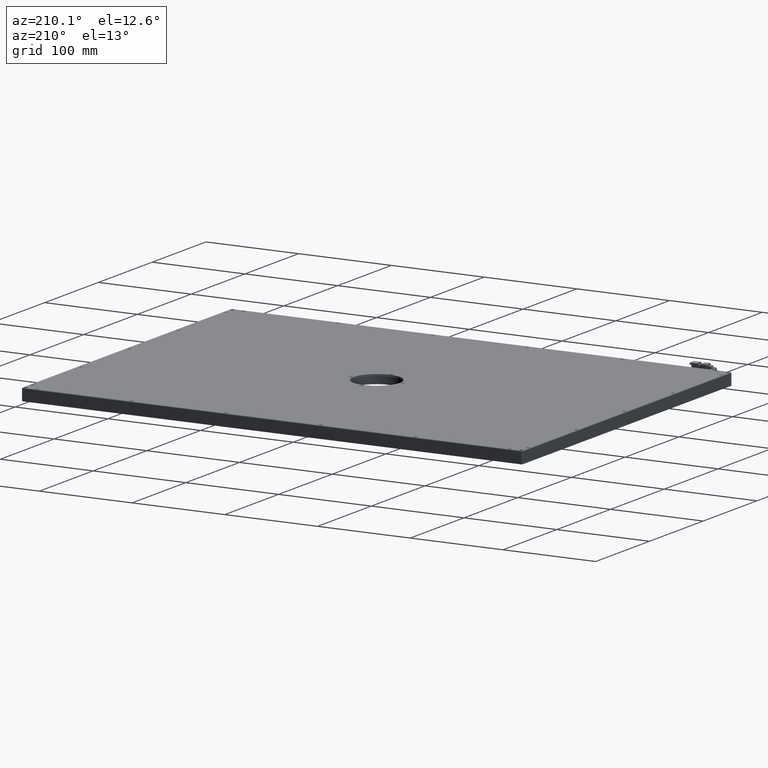
[diagram: clean part render]
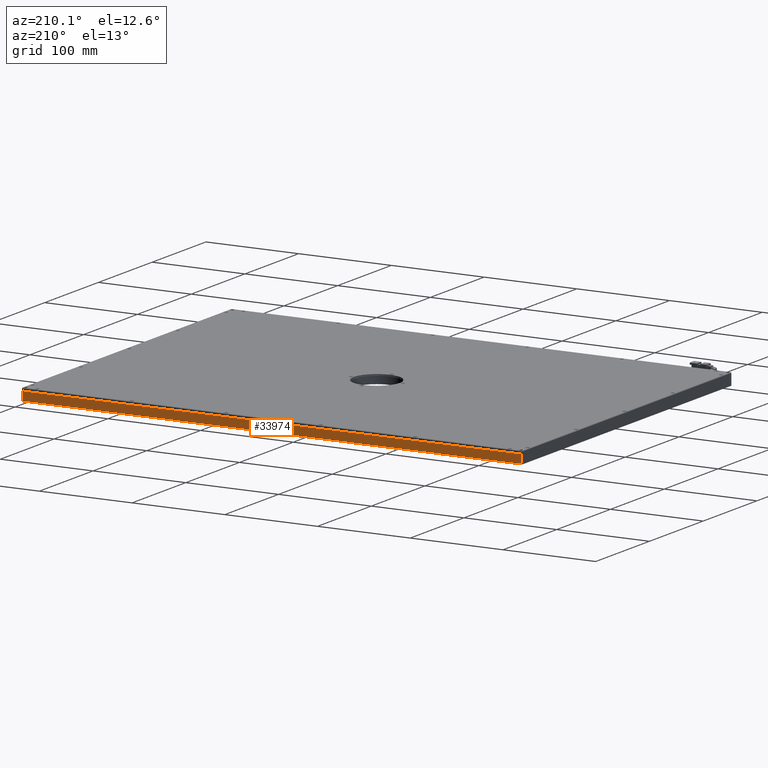
[diagram: same view with one face highlighted and labeled with its STEP entity id]
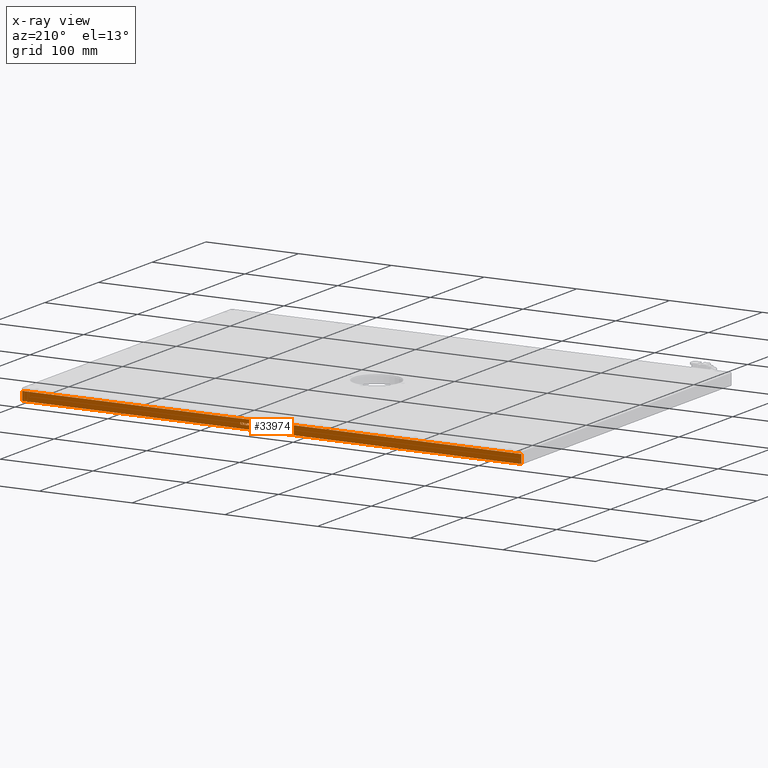
[diagram: x-ray of the same camera — body ghosted, the highlighted face saturated]
A machine part, auxiliary view. The second image highlights one B-rep face of the part: STEP entity #33974.
The next image is the same camera in x-ray: the body ghosted, the highlighted face saturated — about 0% of this face is hidden behind the body in this view.
In plain terms, the highlighted planar face has unit normal (0, -1, 0).
Its self-contained STEP definition (entity closure, byte-faithful):
#26 = VERTEX_POINT ( 'NONE', #10236 ) ;
#27 = CARTESIAN_POINT ( 'NONE',  ( 33.21320319424808800, 215.7122774133083900, 4.307389354276608600 ) ) ;
#49 = ORIENTED_EDGE ( 'NONE', *, *, #27074, .F. ) ;
#83 = CARTESIAN_POINT ( 'NONE',  ( 47.14581267423978500, 215.7122774133083900, 5.066051769754282400 ) ) ;
#106 = VERTEX_POINT ( 'NONE', #25905 ) ;
#115 = CARTESIAN_POINT ( 'NONE',  ( 42.10968503767953300, 215.7122774133083900, 4.293958746498466500 ) ) ;
#162 = EDGE_CURVE ( 'NONE', #39731, #28490, #796, .T. ) ;
#195 = CARTESIAN_POINT ( 'NONE',  ( 45.57220531891253800, 215.7122774133083900, 4.554423862777538200 ) ) ;
#253 = LINE ( 'NONE', #8444, #32046 ) ;
#293 = B_SPLINE_CURVE_WITH_KNOTS ( 'NONE', 3,
 ( #20347, #20625, #13877, #10269 ),
 .UNSPECIFIED., .F., .F.,
 ( 4, 4 ),
 ( 3.000000000000000000, 4.000000000000000000 ),
 .UNSPECIFIED. ) ;
#351 = CARTESIAN_POINT ( 'NONE',  ( 46.32720802307704800, 215.7122774133083900, 5.996284327893819800 ) ) ;
#357 = ORIENTED_EDGE ( 'NONE', *, *, #10112, .F. ) ;
#416 = EDGE_CURVE ( 'NONE', #2087, #13637, #21304, .T. ) ;
#452 = ORIENTED_EDGE ( 'NONE', *, *, #3244, .F. ) ;
#568 = LINE ( 'NONE', #24405, #34388 ) ;
#571 = B_SPLINE_CURVE_WITH_KNOTS ( 'NONE', 3,
 ( #11044, #33981, #14357, #24266 ),
 .UNSPECIFIED., .F., .F.,
 ( 4, 4 ),
 ( 9.000000000000000000, 10.00000000000000000 ),
 .UNSPECIFIED. ) ;
#676 = CARTESIAN_POINT ( 'NONE',  ( 35.08042597872873400, 215.7122774133083900, 5.419540141847318400 ) ) ;
#684 = ORIENTED_EDGE ( 'NONE', *, *, #13668, .F. ) ;
#688 = CARTESIAN_POINT ( 'NONE',  ( 45.96274074346639800, 215.7122774133083900, 4.926516886033355500 ) ) ;
#705 = VECTOR ( 'NONE', #35468, 1000.000000000000000 ) ;
#796 = LINE ( 'NONE', #19305, #6364 ) ;
#807 = VECTOR ( 'NONE', #41390, 1000.000000000000000 ) ;
#871 = LINE ( 'NONE', #5561, #8502 ) ;
#907 = CARTESIAN_POINT ( 'NONE',  ( -255.0590440487347600, 215.7122774133083900, 10.00000000001909900 ) ) ;
#944 = VERTEX_POINT ( 'NONE', #2016 ) ;
#1049 = CARTESIAN_POINT ( 'NONE',  ( 34.62050169533231500, 215.7122774133083900, 4.266051769754287000 ) ) ;
#1056 = CARTESIAN_POINT ( 'NONE',  ( 32.66942100099123500, 215.7122774133083900, 6.746325669416636500 ) ) ;
#1068 = VERTEX_POINT ( 'NONE', #9251 ) ;
#1216 = DIRECTION ( 'NONE',  ( 1.000000000000000000, -0.0000000000000000000, -0.0000000000000000000 ) ) ;
#1224 = VERTEX_POINT ( 'NONE', #3230 ) ;
#1284 = CARTESIAN_POINT ( 'NONE',  ( 47.37723506472119100, 215.7122774133083900, 6.331168048824060300 ) ) ;
#1289 = CARTESIAN_POINT ( 'NONE',  ( 45.77469315017268800, 215.7122774133083900, 4.554423862777538200 ) ) ;
#1324 = EDGE_CURVE ( 'NONE', #24773, #18893, #20056, .T. ) ;
#1457 = VERTEX_POINT ( 'NONE', #33560 ) ;
#1462 = VECTOR ( 'NONE', #4203, 1000.000000000000000 ) ;
#1622 = DIRECTION ( 'NONE',  ( -0.0000000000000000000, -0.0000000000000000000, -1.000000000000000000 ) ) ;
#1673 = ORIENTED_EDGE ( 'NONE', *, *, #15126, .F. ) ;
#1716 = CARTESIAN_POINT ( 'NONE',  ( 37.42353035947504500, 215.7122774133083900, 4.293958746498466500 ) ) ;
#1730 = EDGE_CURVE ( 'NONE', #29531, #4895, #6815, .T. ) ;
#1886 = CARTESIAN_POINT ( 'NONE',  ( 34.12585594087036600, 215.7122774133083900, 4.827382218645571000 ) ) ;
#1897 = CARTESIAN_POINT ( 'NONE',  ( 44.00146437786340000, 215.7122774133083900, 4.293958746498466500 ) ) ;
#2015 = VECTOR ( 'NONE', #7739, 1000.000000000000000 ) ;
#2016 = CARTESIAN_POINT ( 'NONE',  ( 43.14235134379090700, 215.7122774133083900, 6.293958746498468300 ) ) ;
#2087 = VERTEX_POINT ( 'NONE', #23105 ) ;
#2149 = CARTESIAN_POINT ( 'NONE',  ( 38.30865745520250700, 215.7122774133083900, 5.307912234870571800 ) ) ;
#2191 = ORIENTED_EDGE ( 'NONE', *, *, #30976, .T. ) ;
#2221 = EDGE_CURVE ( 'NONE', #9278, #1068, #36797, .T. ) ;
#2256 = B_SPLINE_CURVE_WITH_KNOTS ( 'NONE', 3,
 ( #6150, #31879, #18794, #22133 ),
 .UNSPECIFIED., .F., .F.,
 ( 4, 4 ),
 ( 7.000000000000000000, 8.000000000000000000 ),
 .UNSPECIFIED. ) ;
#2271 = CARTESIAN_POINT ( 'NONE',  ( 47.04748925617602100, 215.7122774133083900, 4.814888979056609000 ) ) ;
#2295 = ORIENTED_EDGE ( 'NONE', *, *, #17828, .F. ) ;
#2310 = CARTESIAN_POINT ( 'NONE',  ( 282.9409559512652100, 215.7122774133084400, 0.5000000000189349600 ) ) ;
#2325 = VECTOR ( 'NONE', #5101, 1000.000000000000000 ) ;
#2331 = CARTESIAN_POINT ( 'NONE',  ( 40.42612635731174500, 215.7122774133083900, 6.293958746498468300 ) ) ;
#2474 = CARTESIAN_POINT ( 'NONE',  ( 36.15652116531609300, 215.7122774133083900, 5.549772699986832900 ) ) ;
#2530 = EDGE_CURVE ( 'NONE', #21427, #39345, #2730, .T. ) ;
#2630 = DIRECTION ( 'NONE',  ( -1.000000000000000000, -0.0000000000000000000, -0.0000000000000000000 ) ) ;
#2676 = CARTESIAN_POINT ( 'NONE',  ( 48.01942002956705100, 215.7122774133083900, 4.486251877920850000 ) ) ;
#2721 = CARTESIAN_POINT ( 'NONE',  ( 35.02839785541878100, 215.7122774133083900, 4.852098281382200900 ) ) ;
#2730 = B_SPLINE_CURVE_WITH_KNOTS ( 'NONE', 3,
 ( #36676, #10096, #26518, #7103 ),
 .UNSPECIFIED., .F., .F.,
 ( 4, 4 ),
 ( 3.000000000000000000, 4.000000000000000000 ),
 .UNSPECIFIED. ) ;
#2742 = CARTESIAN_POINT ( 'NONE',  ( 37.42353035947504500, 215.7122774133083900, 5.428842467428702400 ) ) ;
#2808 = CARTESIAN_POINT ( 'NONE',  ( 43.75846816369355000, 215.7122774133083900, 4.293958746498466500 ) ) ;
#3074 = CARTESIAN_POINT ( 'NONE',  ( 46.37063690355286400, 215.7122774133083900, 4.926516886033355500 ) ) ;
#3076 = ORIENTED_EDGE ( 'NONE', *, *, #10910, .F. ) ;
#3230 = CARTESIAN_POINT ( 'NONE',  ( 282.9409559512652100, 215.7122774133084400, 10.00000000001909900 ) ) ;
#3244 = EDGE_CURVE ( 'NONE', #28118, #106, #12316, .T. ) ;
#3261 = B_SPLINE_CURVE_WITH_KNOTS ( 'NONE', 3,
 ( #7151, #23549, #22973, #23252 ),
 .UNSPECIFIED., .F., .F.,
 ( 4, 4 ),
 ( 8.000000000000000000, 9.000000000000000000 ),
 .UNSPECIFIED. ) ;
#3263 = CARTESIAN_POINT ( 'NONE',  ( 46.63964717937773900, 215.7122774133083900, 4.455289195389767100 ) ) ;
#3285 = ORIENTED_EDGE ( 'NONE', *, *, #42528, .F. ) ;
#3302 = CARTESIAN_POINT ( 'NONE',  ( 41.23315718478603700, 215.7122774133083900, 4.293958746498466500 ) ) ;
#3352 = CARTESIAN_POINT ( 'NONE',  ( 38.30865745520250700, 215.7122774133083900, 5.307912234870571800 ) ) ;
#3425 = LINE ( 'NONE', #115, #28610 ) ;
#3462 = CARTESIAN_POINT ( 'NONE',  ( 47.37723506472119100, 215.7122774133083900, 5.103261072079873500 ) ) ;
#3551 = VERTEX_POINT ( 'NONE', #9838 ) ;
#3559 = CARTESIAN_POINT ( 'NONE',  ( 32.66942100099123500, 215.7122774133083900, 3.763585402517789300 ) ) ;
#3594 = CARTESIAN_POINT ( 'NONE',  ( 37.42353035947504500, 215.7122774133083900, 4.293958746498466500 ) ) ;
#3692 = CARTESIAN_POINT ( 'NONE',  ( 33.21320319424808800, 215.7122774133083900, 4.307389354276608600 ) ) ;
#3777 = VECTOR ( 'NONE', #31604, 1000.000000000000000 ) ;
#3894 = LINE ( 'NONE', #14262, #15165 ) ;
#3963 = DIRECTION ( 'NONE',  ( 1.000000000000000000, -0.0000000000000000000, -0.0000000000000000000 ) ) ;
#3973 = CARTESIAN_POINT ( 'NONE',  ( 35.02839785541878100, 215.7122774133083900, 4.852098281382200900 ) ) ;
#4177 = CARTESIAN_POINT ( 'NONE',  ( 36.87680239841512300, 215.7122774133083900, 6.073893846552553400 ) ) ;
#4203 = DIRECTION ( 'NONE',  ( 0.0000000000000000000, -0.0000000000000000000, -1.000000000000000000 ) ) ;
#4259 = CARTESIAN_POINT ( 'NONE',  ( 48.08886297169790000, 215.7122774133083900, 4.889307583707764400 ) ) ;
#4396 = B_SPLINE_CURVE_WITH_KNOTS ( 'NONE', 3,
 ( #12948, #22732, #22612, #3352 ),
 .UNSPECIFIED., .F., .F.,
 ( 4, 4 ),
 ( 2.000000000000000000, 3.000000000000000000 ),
 .UNSPECIFIED. ) ;
#4512 = LINE ( 'NONE', #20653, #2015 ) ;
#4538 = ORIENTED_EDGE ( 'NONE', *, *, #18890, .F. ) ;
#4619 = CARTESIAN_POINT ( 'NONE',  ( 36.57307065152487300, 215.7122774133083900, 6.331168048824060300 ) ) ;
#4676 = B_SPLINE_CURVE_WITH_KNOTS ( 'NONE', 3,
 ( #40072, #20390, #30442, #20666 ),
 .UNSPECIFIED., .F., .F.,
 ( 4, 4 ),
 ( 6.000000000000000000, 7.000000000000000000 ),
 .UNSPECIFIED. ) ;
#4689 = CARTESIAN_POINT ( 'NONE',  ( 40.16576940760913300, 215.7122774133083900, 5.307912234870571800 ) ) ;
#4710 = ORIENTED_EDGE ( 'NONE', *, *, #15939, .F. ) ;
#4759 = CARTESIAN_POINT ( 'NONE',  ( 47.35992841247671200, 215.7122774133083900, 5.456749444172881900 ) ) ;
#4895 = VERTEX_POINT ( 'NONE', #5253 ) ;
#4963 = B_SPLINE_CURVE_WITH_KNOTS ( 'NONE', 3,
 ( #22316, #2676, #13082, #12675 ),
 .UNSPECIFIED., .F., .F.,
 ( 4, 4 ),
 ( 6.000000000000000000, 7.000000000000000000 ),
 .UNSPECIFIED. ) ;
#5030 = EDGE_CURVE ( 'NONE', #13316, #39731, #24725, .T. ) ;
#5041 = DIRECTION ( 'NONE',  ( -1.000000000000000000, -0.0000000000000000000, -0.0000000000000000000 ) ) ;
#5101 = DIRECTION ( 'NONE',  ( -0.0000000000000000000, -0.0000000000000000000, 1.000000000000000000 ) ) ;
#5148 = EDGE_CURVE ( 'NONE', #33947, #22887, #14958, .T. ) ;
#5171 = VECTOR ( 'NONE', #3963, 1000.000000000000000 ) ;
#5175 = CARTESIAN_POINT ( 'NONE',  ( 47.70984728754434900, 215.7122774133083900, 5.968377351149640300 ) ) ;
#5177 = CARTESIAN_POINT ( 'NONE',  ( 34.52504469154654700, 215.7122774133083900, 5.419540141847318400 ) ) ;
#5218 = ORIENTED_EDGE ( 'NONE', *, *, #34176, .F. ) ;
#5252 = VERTEX_POINT ( 'NONE', #37237 ) ;
#5253 = CARTESIAN_POINT ( 'NONE',  ( 36.57307065152487300, 215.7122774133083900, 6.331168048824060300 ) ) ;
#5260 = CARTESIAN_POINT ( 'NONE',  ( 35.73997167910736300, 215.7122774133083900, 5.447447118591497900 ) ) ;
#5300 = CARTESIAN_POINT ( 'NONE',  ( 46.62228644384502700, 215.7122774133083900, 4.814888979056609000 ) ) ;
#5359 = VERTEX_POINT ( 'NONE', #33720 ) ;
#5561 = CARTESIAN_POINT ( 'NONE',  ( 43.14235134379090700, 215.7122774133083900, 6.293958746498468300 ) ) ;
#5585 = CARTESIAN_POINT ( 'NONE',  ( 47.71568828267680800, 215.7122774133083900, 5.763726188358928600 ) ) ;
#5676 = CARTESIAN_POINT ( 'NONE',  ( 47.71568828267680800, 215.7122774133083900, 5.602530947688303600 ) ) ;
#5713 = VERTEX_POINT ( 'NONE', #11082 ) ;
#5744 = EDGE_CURVE ( 'NONE', #18586, #18499, #29947, .T. ) ;
#5857 = CARTESIAN_POINT ( 'NONE',  ( 36.58172397764703000, 215.7122774133083900, 6.061400606963591300 ) ) ;
#5915 = ORIENTED_EDGE ( 'NONE', *, *, #42533, .F. ) ;
#6002 = CARTESIAN_POINT ( 'NONE',  ( 36.29821938056754500, 215.7122774133083900, 6.061400606963591300 ) ) ;
#6097 = CARTESIAN_POINT ( 'NONE',  ( -255.0590440487347600, 215.7122774133083900, 0.5000000000189333000 ) ) ;
#6150 = CARTESIAN_POINT ( 'NONE',  ( 30.23046300269960400, 215.7122774133083900, 6.202516281466458300 ) ) ;
#6161 = CARTESIAN_POINT ( 'NONE',  ( 47.32520694141123800, 215.7122774133083900, 4.266051769754287000 ) ) ;
#6229 = ORIENTED_EDGE ( 'NONE', *, *, #22079, .F. ) ;
#6257 = CARTESIAN_POINT ( 'NONE',  ( 46.62228644384502700, 215.7122774133083900, 4.814888979056609000 ) ) ;
#6364 = VECTOR ( 'NONE', #42596, 1000.000000000000000 ) ;
#6379 = DIRECTION ( 'NONE',  ( -1.000000000000000000, -0.0000000000000000000, -0.0000000000000000000 ) ) ;
#6438 = LINE ( 'NONE', #28937, #21879 ) ;
#6470 = ORIENTED_EDGE ( 'NONE', *, *, #12105, .F. ) ;
#6726 = CARTESIAN_POINT ( 'NONE',  ( 42.10968503767953300, 215.7122774133083900, 4.573028513940333700 ) ) ;
#6776 = ORIENTED_EDGE ( 'NONE', *, *, #27312, .F. ) ;
#6794 = EDGE_CURVE ( 'NONE', #23904, #35122, #25929, .T. ) ;
#6797 = ORIENTED_EDGE ( 'NONE', *, *, #26982, .F. ) ;
#6802 = CARTESIAN_POINT ( 'NONE',  ( 46.32720802307704800, 215.7122774133083900, 5.996284327893819800 ) ) ;
#6815 = B_SPLINE_CURVE_WITH_KNOTS ( 'NONE', 3,
 ( #11644, #14961, #24727, #4619 ),
 .UNSPECIFIED., .F., .F.,
 ( 4, 4 ),
 ( 9.000000000000000000, 10.00000000000000000 ),
 .UNSPECIFIED. ) ;
#6833 = VERTEX_POINT ( 'NONE', #1716 ) ;
#6877 = EDGE_CURVE ( 'NONE', #22887, #10344, #18165, .T. ) ;
#6899 = DIRECTION ( 'NONE',  ( -0.0000000000000000000, -0.0000000000000000000, -1.000000000000000000 ) ) ;
#6916 = VECTOR ( 'NONE', #30957, 1000.000000000000000 ) ;
#7016 = VERTEX_POINT ( 'NONE', #39124 ) ;
#7081 = VECTOR ( 'NONE', #33406, 1000.000000000000000 ) ;
#7103 = CARTESIAN_POINT ( 'NONE',  ( 39.23721343140584800, 215.7122774133083900, 4.266051769754287000 ) ) ;
#7151 = CARTESIAN_POINT ( 'NONE',  ( 36.57307065152487300, 215.7122774133083900, 6.331168048824060300 ) ) ;
#7306 = CARTESIAN_POINT ( 'NONE',  ( 47.68967422102188200, 215.7122774133083900, 4.889307583707764400 ) ) ;
#7358 = VERTEX_POINT ( 'NONE', #18246 ) ;
#7364 = CARTESIAN_POINT ( 'NONE',  ( 45.90768395601369200, 215.7122774133083900, 6.073893846552553400 ) ) ;
#7440 = VERTEX_POINT ( 'NONE', #12367 ) ;
#7640 = CARTESIAN_POINT ( 'NONE',  ( 39.23721343140584800, 215.7122774133083900, 4.266051769754287000 ) ) ;
#7661 = DIRECTION ( 'NONE',  ( 1.000000000000000000, -0.0000000000000000000, 0.0000000000000000000 ) ) ;
#7671 = ORIENTED_EDGE ( 'NONE', *, *, #25223, .F. ) ;
#7739 = DIRECTION ( 'NONE',  ( 1.000000000000000000, -0.0000000000000000000, 0.0000000000000000000 ) ) ;
#7765 = VERTEX_POINT ( 'NONE', #7306 ) ;
#7819 = ORIENTED_EDGE ( 'NONE', *, *, #2530, .F. ) ;
#7830 = EDGE_CURVE ( 'NONE', #28490, #2087, #568, .T. ) ;
#7856 = DIRECTION ( 'NONE',  ( -0.0000000000000000000, -0.0000000000000000000, 1.000000000000000000 ) ) ;
#7895 = EDGE_CURVE ( 'NONE', #10344, #39333, #32133, .T. ) ;
#8076 = VECTOR ( 'NONE', #25750, 1000.000000000000000 ) ;
#8090 = ORIENTED_EDGE ( 'NONE', *, *, #18389, .F. ) ;
#8097 = VECTOR ( 'NONE', #28592, 1000.000000000000000 ) ;
#8152 = CARTESIAN_POINT ( 'NONE',  ( 34.62050169533231500, 215.7122774133083900, 4.545121537196154200 ) ) ;
#8153 = EDGE_CURVE ( 'NONE', #30052, #42301, #13152, .T. ) ;
#8256 = B_SPLINE_CURVE_WITH_KNOTS ( 'NONE', 3,
 ( #12945, #39649, #39366, #23275 ),
 .UNSPECIFIED., .F., .F.,
 ( 4, 4 ),
 ( 9.000000000000000000, 10.00000000000000000 ),
 .UNSPECIFIED. ) ;
#8310 = CARTESIAN_POINT ( 'NONE',  ( 35.01671586515387000, 215.7122774133083900, 5.965321645362723600 ) ) ;
#8349 = ORIENTED_EDGE ( 'NONE', *, *, #8578, .F. ) ;
#8356 = EDGE_CURVE ( 'NONE', #1457, #7440, #40558, .T. ) ;
#8441 = VERTEX_POINT ( 'NONE', #8985 ) ;
#8444 = CARTESIAN_POINT ( 'NONE',  ( 44.40936053794985800, 215.7122774133083900, 4.293958746498466500 ) ) ;
#8447 = CARTESIAN_POINT ( 'NONE',  ( 48.08886297169790000, 215.7122774133083900, 4.889307583707764400 ) ) ;
#8457 = CARTESIAN_POINT ( 'NONE',  ( 47.37723506472119100, 215.7122774133083900, 5.103261072079873500 ) ) ;
#8475 = ORIENTED_EDGE ( 'NONE', *, *, #7830, .F. ) ;
#8502 = VECTOR ( 'NONE', #28581, 1000.000000000000000 ) ;
#8549 = CARTESIAN_POINT ( 'NONE',  ( 34.10849520533759700, 215.7122774133083900, 5.298609909289159400 ) ) ;
#8578 = EDGE_CURVE ( 'NONE', #28230, #15134, #37390, .T. ) ;
#8875 = CARTESIAN_POINT ( 'NONE',  ( 34.12585594087036600, 215.7122774133083900, 5.776219427947904900 ) ) ;
#8985 = CARTESIAN_POINT ( 'NONE',  ( 36.58172397764703000, 215.7122774133083900, 6.061400606963591300 ) ) ;
#9155 = VECTOR ( 'NONE', #31701, 1000.000000000000000 ) ;
#9167 = CARTESIAN_POINT ( 'NONE',  ( 46.82753252280652800, 215.7122774133083900, 5.363726188358930900 ) ) ;
#9230 = EDGE_CURVE ( 'NONE', #13222, #18586, #6438, .T. ) ;
#9237 = VECTOR ( 'NONE', #2630, 1000.000000000000000 ) ;
#9251 = CARTESIAN_POINT ( 'NONE',  ( 46.57885756336915500, 215.7122774133083900, 5.959075025568242100 ) ) ;
#9266 = CARTESIAN_POINT ( 'NONE',  ( 47.71568828267680800, 215.7122774133083900, 5.763726188358928600 ) ) ;
#9278 = VERTEX_POINT ( 'NONE', #36476 ) ;
#9285 = B_SPLINE_CURVE_WITH_KNOTS ( 'NONE', 3,
 ( #26091, #23075, #3263, #6257 ),
 .UNSPECIFIED., .F., .F.,
 ( 4, 4 ),
 ( 5.000000000000000000, 6.000000000000000000 ),
 .UNSPECIFIED. ) ;
#9331 = ORIENTED_EDGE ( 'NONE', *, *, #29854, .F. ) ;
#9491 = ORIENTED_EDGE ( 'NONE', *, *, #12501, .F. ) ;
#9564 = EDGE_CURVE ( 'NONE', #6833, #19949, #29484, .T. ) ;
#9574 = EDGE_CURVE ( 'NONE', #27322, #33947, #30525, .T. ) ;
#9775 = CARTESIAN_POINT ( 'NONE',  ( 48.14094517829603600, 215.7122774133083900, 5.735819211614749100 ) ) ;
#9798 = CARTESIAN_POINT ( 'NONE',  ( 44.65235675211970100, 215.7122774133083900, 5.298609909289159400 ) ) ;
#9821 = EDGE_CURVE ( 'NONE', #12759, #24773, #29676, .T. ) ;
#9838 = CARTESIAN_POINT ( 'NONE',  ( 34.62050169533231500, 215.7122774133083900, 4.545121537196154200 ) ) ;
#9860 = CARTESIAN_POINT ( 'NONE',  ( 45.07755956445075200, 215.7122774133083900, 5.317214560451955800 ) ) ;
#10008 = EDGE_CURVE ( 'NONE', #17359, #8441, #42085, .T. ) ;
#10096 = CARTESIAN_POINT ( 'NONE',  ( 40.12520694141136300, 215.7122774133083900, 4.650638032599067300 ) ) ;
#10112 = EDGE_CURVE ( 'NONE', #17244, #1457, #253, .T. ) ;
#10191 = VERTEX_POINT ( 'NONE', #2310 ) ;
#10236 = CARTESIAN_POINT ( 'NONE',  ( 30.77429412167620600, 215.7122774133083900, 3.763585402517789300 ) ) ;
#10269 = CARTESIAN_POINT ( 'NONE',  ( 45.07755956445075200, 215.7122774133083900, 5.317214560451955800 ) ) ;
#10270 = ORIENTED_EDGE ( 'NONE', *, *, #25210, .F. ) ;
#10344 = VERTEX_POINT ( 'NONE', #39164 ) ;
#10348 = CARTESIAN_POINT ( 'NONE',  ( 34.52504469154654700, 215.7122774133083900, 5.140470374405437900 ) ) ;
#10362 = CARTESIAN_POINT ( 'NONE',  ( 45.65900899657626900, 215.7122774133083900, 6.061400606963591300 ) ) ;
#10446 = VERTEX_POINT ( 'NONE', #4259 ) ;
#10541 = LINE ( 'NONE', #8447, #15166 ) ;
#10596 = CARTESIAN_POINT ( 'NONE',  ( 30.23046300269960400, 215.7122774133083900, 6.202516281466458300 ) ) ;
#10611 = CARTESIAN_POINT ( 'NONE',  ( 45.90481754173569600, 215.7122774133083900, 6.331168048824060300 ) ) ;
#10649 = ORIENTED_EDGE ( 'NONE', *, *, #19086, .F. ) ;
#10660 = LINE ( 'NONE', #3594, #21977 ) ;
#10704 = B_SPLINE_CURVE_WITH_KNOTS ( 'NONE', 3,
 ( #23762, #23310, #7364, #10362 ),
 .UNSPECIFIED., .F., .F.,
 ( 4, 4 ),
 ( 4.000000000000000000, 5.000000000000000000 ),
 .UNSPECIFIED. ) ;
#10892 = CARTESIAN_POINT ( 'NONE',  ( 36.58172397764703000, 215.7122774133083900, 6.061400606963591300 ) ) ;
#10910 = EDGE_CURVE ( 'NONE', #19949, #17359, #17248, .T. ) ;
#10980 = EDGE_CURVE ( 'NONE', #7765, #10446, #10541, .T. ) ;
#10988 = B_SPLINE_CURVE_WITH_KNOTS ( 'NONE', 3,
 ( #35083, #19173, #5676, #9266 ),
 .UNSPECIFIED., .F., .F.,
 ( 4, 4 ),
 ( 3.000000000000000000, 4.000000000000000000 ),
 .UNSPECIFIED. ) ;
#11044 = CARTESIAN_POINT ( 'NONE',  ( 46.37063690355286400, 215.7122774133083900, 4.926516886033355500 ) ) ;
#11082 = CARTESIAN_POINT ( 'NONE',  ( 36.15652116531609300, 215.7122774133083900, 4.293958746498466500 ) ) ;
#11083 = ORIENTED_EDGE ( 'NONE', *, *, #30163, .F. ) ;
#11231 = EDGE_CURVE ( 'NONE', #18299, #16111, #9285, .T. ) ;
#11235 = CARTESIAN_POINT ( 'NONE',  ( 35.08042597872873400, 215.7122774133083900, 5.419540141847318400 ) ) ;
#11295 = EDGE_CURVE ( 'NONE', #24435, #19706, #12601, .T. ) ;
#11344 = DIRECTION ( 'NONE',  ( -0.0000000000000000000, 0.0000000000000000000, 1.000000000000000000 ) ) ;
#11619 = FACE_BOUND ( 'NONE', #26976, .T. ) ;
#11641 = CARTESIAN_POINT ( 'NONE',  ( 46.77550439949673900, 215.7122774133083900, 6.225651553421133000 ) ) ;
#11644 = CARTESIAN_POINT ( 'NONE',  ( 35.73997167910736300, 215.7122774133083900, 5.447447118591497900 ) ) ;
#11695 = ORIENTED_EDGE ( 'NONE', *, *, #26468, .F. ) ;
#11798 = VECTOR ( 'NONE', #16144, 1000.000000000000000 ) ;
#11913 = CARTESIAN_POINT ( 'NONE',  ( 46.58172397764703700, 215.7122774133083900, 5.149772699986849400 ) ) ;
#12099 = ORIENTED_EDGE ( 'NONE', *, *, #9564, .F. ) ;
#12105 = EDGE_CURVE ( 'NONE', #13540, #27322, #31367, .T. ) ;
#12146 = CARTESIAN_POINT ( 'NONE',  ( 30.23046300269960400, 215.7122774133083900, 4.416140359484225000 ) ) ;
#12158 = CARTESIAN_POINT ( 'NONE',  ( 33.71498519992932300, 215.7122774133083900, 5.959075025568242100 ) ) ;
#12215 = CARTESIAN_POINT ( 'NONE',  ( 35.33494193329872200, 215.7122774133083900, 4.461400606963587200 ) ) ;
#12300 = CARTESIAN_POINT ( 'NONE',  ( 45.54619125725761800, 215.7122774133083900, 4.266051769754287000 ) ) ;
#12316 = B_SPLINE_CURVE_WITH_KNOTS ( 'NONE', 3,
 ( #41245, #15211, #15068, #8457 ),
 .UNSPECIFIED., .F., .F.,
 ( 4, 4 ),
 ( 11.00000000000000000, 12.00000000000000000 ),
 .UNSPECIFIED. ) ;
#12338 = CARTESIAN_POINT ( 'NONE',  ( 34.65522316639769000, 215.7122774133083900, 6.061400606963591300 ) ) ;
#12367 = CARTESIAN_POINT ( 'NONE',  ( 44.00146437786340000, 215.7122774133083900, 4.293958746498466500 ) ) ;
#12501 = EDGE_CURVE ( 'NONE', #4895, #32586, #3261, .T. ) ;
#12601 = B_SPLINE_CURVE_WITH_KNOTS ( 'NONE', 3,
 ( #25951, #19487, #19344, #12881 ),
 .UNSPECIFIED., .F., .F.,
 ( 4, 4 ),
 ( 8.000000000000000000, 9.000000000000000000 ),
 .UNSPECIFIED. ) ;
#12668 = EDGE_CURVE ( 'NONE', #17220, #10191, #4512, .T. ) ;
#12675 = CARTESIAN_POINT ( 'NONE',  ( 47.32520694141123800, 215.7122774133083900, 4.266051769754287000 ) ) ;
#12694 = ORIENTED_EDGE ( 'NONE', *, *, #5148, .F. ) ;
#12759 = VERTEX_POINT ( 'NONE', #30430 ) ;
#12799 = LINE ( 'NONE', #32975, #17404 ) ;
#12871 = ORIENTED_EDGE ( 'NONE', *, *, #37466, .F. ) ;
#12881 = CARTESIAN_POINT ( 'NONE',  ( 44.65235675211970100, 215.7122774133083900, 5.298609909289159400 ) ) ;
#12912 = CARTESIAN_POINT ( 'NONE',  ( 40.42612635731174500, 215.7122774133083900, 4.293958746498466500 ) ) ;
#12945 = CARTESIAN_POINT ( 'NONE',  ( 47.04748925617602100, 215.7122774133083900, 4.814888979056609000 ) ) ;
#12948 = CARTESIAN_POINT ( 'NONE',  ( 39.23721343140584800, 215.7122774133083900, 4.266051769754287000 ) ) ;
#12981 = EDGE_LOOP ( 'NONE', ( #38494, #18138, #40268, #17061, #49, #10649, #42592, #29639, #26125, #18115 ) ) ;
#13082 = CARTESIAN_POINT ( 'NONE',  ( 47.76479590842042500, 215.7122774133083900, 4.278545009343249100 ) ) ;
#13127 = CARTESIAN_POINT ( 'NONE',  ( 40.42612635731174500, 215.7122774133083900, 4.293958746498466500 ) ) ;
#13152 = B_SPLINE_CURVE_WITH_KNOTS ( 'NONE', 3,
 ( #1056, #36581, #27160, #39910 ),
 .UNSPECIFIED., .F., .F.,
 ( 4, 4 ),
 ( 5.000000000000000000, 6.000000000000000000 ),
 .UNSPECIFIED. ) ;
#13222 = VERTEX_POINT ( 'NONE', #3973 ) ;
#13316 = VERTEX_POINT ( 'NONE', #13416 ) ;
#13416 = CARTESIAN_POINT ( 'NONE',  ( 41.23315718478603700, 215.7122774133083900, 4.293958746498466500 ) ) ;
#13469 = EDGE_CURVE ( 'NONE', #29751, #23904, #36261, .T. ) ;
#13540 = VERTEX_POINT ( 'NONE', #22335 ) ;
#13637 = VERTEX_POINT ( 'NONE', #28147 ) ;
#13668 = EDGE_CURVE ( 'NONE', #19177, #29531, #41875, .T. ) ;
#13714 = EDGE_LOOP ( 'NONE', ( #41316, #20671, #3285, #41506, #11083, #18161, #6229, #26075 ) ) ;
#13779 = VERTEX_POINT ( 'NONE', #15592 ) ;
#13877 = CARTESIAN_POINT ( 'NONE',  ( 45.08913338813918900, 215.7122774133083900, 5.788577459316218900 ) ) ;
#13988 = EDGE_CURVE ( 'NONE', #25385, #28118, #16443, .T. ) ;
#13997 = B_SPLINE_CURVE_WITH_KNOTS ( 'NONE', 3,
 ( #41255, #21689, #25276, #38357 ),
 .UNSPECIFIED., .F., .F.,
 ( 4, 4 ),
 ( 7.000000000000000000, 8.000000000000000000 ),
 .UNSPECIFIED. ) ;
#14074 = EDGE_LOOP ( 'NONE', ( #9491, #38236, #684, #4538, #11695, #12871, #39325, #3076, #12099, #5915 ) ) ;
#14115 = ORIENTED_EDGE ( 'NONE', *, *, #32363, .F. ) ;
#14220 = CARTESIAN_POINT ( 'NONE',  ( 34.52504469154654700, 215.7122774133083900, 5.419540141847318400 ) ) ;
#14262 = CARTESIAN_POINT ( 'NONE',  ( -256.0590440487347900, 215.7122774133083900, 10.00000000001909900 ) ) ;
#14295 = B_SPLINE_CURVE_WITH_KNOTS ( 'NONE', 3,
 ( #5585, #5175, #18374, #25015 ),
 .UNSPECIFIED., .F., .F.,
 ( 4, 4 ),
 ( 2.000000000000000000, 3.000000000000000000 ),
 .UNSPECIFIED. ) ;
#14357 = CARTESIAN_POINT ( 'NONE',  ( 46.00314095979957300, 215.7122774133083900, 4.272298389548768500 ) ) ;
#14380 = EDGE_CURVE ( 'NONE', #13779, #5359, #41754, .T. ) ;
#14411 = CARTESIAN_POINT ( 'NONE',  ( 42.10968503767953300, 215.7122774133083900, 4.293958746498466500 ) ) ;
#14594 = CARTESIAN_POINT ( 'NONE',  ( 39.23721343140584800, 215.7122774133083900, 6.331168048824060300 ) ) ;
#14660 = CARTESIAN_POINT ( 'NONE',  ( 46.57885756336915500, 215.7122774133083900, 5.959075025568242100 ) ) ;
#14879 = B_SPLINE_CURVE_WITH_KNOTS ( 'NONE', 3,
 ( #15158, #24941, #21483, #41625 ),
 .UNSPECIFIED., .F., .F.,
 ( 4, 4 ),
 ( 12.00000000000000000, 13.00000000000000000 ),
 .UNSPECIFIED. ) ;
#14906 = VECTOR ( 'NONE', #11344, 1000.000000000000000 ) ;
#14916 = ORIENTED_EDGE ( 'NONE', *, *, #9574, .F. ) ;
#14958 = LINE ( 'NONE', #676, #5171 ) ;
#14961 = CARTESIAN_POINT ( 'NONE',  ( 35.72261094357459400, 215.7122774133083900, 6.055289195389757900 ) ) ;
#15068 = CARTESIAN_POINT ( 'NONE',  ( 47.88626697386116900, 215.7122774133083900, 5.208777567482786500 ) ) ;
#15126 = EDGE_CURVE ( 'NONE', #7016, #7765, #25813, .T. ) ;
#15134 = VERTEX_POINT ( 'NONE', #28422 ) ;
#15158 = CARTESIAN_POINT ( 'NONE',  ( 34.62050169533231500, 215.7122774133083900, 4.266051769754287000 ) ) ;
#15165 = VECTOR ( 'NONE', #7661, 1000.000000000000000 ) ;
#15166 = VECTOR ( 'NONE', #31569, 1000.000000000000000 ) ;
#15193 = DIRECTION ( 'NONE',  ( -1.000000000000000000, -0.0000000000000000000, -0.0000000000000000000 ) ) ;
#15202 = EDGE_CURVE ( 'NONE', #40667, #18021, #42351, .T. ) ;
#15211 = CARTESIAN_POINT ( 'NONE',  ( 48.14094517829603600, 215.7122774133083900, 5.419540141847318400 ) ) ;
#15216 = VECTOR ( 'NONE', #37464, 1000.000000000000000 ) ;
#15230 = VERTEX_POINT ( 'NONE', #38881 ) ;
#15283 = CARTESIAN_POINT ( 'NONE',  ( 43.75846816369360700, 215.7122774133083900, 4.293958746498466500 ) ) ;
#15311 = ORIENTED_EDGE ( 'NONE', *, *, #416, .F. ) ;
#15328 = VERTEX_POINT ( 'NONE', #15755 ) ;
#15459 = VECTOR ( 'NONE', #30500, 1000.000000000000000 ) ;
#15471 = CARTESIAN_POINT ( 'NONE',  ( 34.64656984027553200, 215.7122774133083900, 6.331168048824060300 ) ) ;
#15592 = CARTESIAN_POINT ( 'NONE',  ( 45.96274074346639800, 215.7122774133083900, 4.926516886033355500 ) ) ;
#15755 = CARTESIAN_POINT ( 'NONE',  ( 45.57220531891253800, 215.7122774133083900, 4.554423862777538200 ) ) ;
#15939 = EDGE_CURVE ( 'NONE', #944, #28230, #42544, .T. ) ;
#15995 = EDGE_CURVE ( 'NONE', #26864, #30968, #3425, .T. ) ;
#16111 = VERTEX_POINT ( 'NONE', #40924 ) ;
#16144 = DIRECTION ( 'NONE',  ( -0.0000000000000000000, -0.0000000000000000000, -1.000000000000000000 ) ) ;
#16304 = EDGE_CURVE ( 'NONE', #27215, #9278, #41797, .T. ) ;
#16440 = CARTESIAN_POINT ( 'NONE',  ( 42.72580185758217700, 215.7122774133083900, 4.573028513940333700 ) ) ;
#16443 = B_SPLINE_CURVE_WITH_KNOTS ( 'NONE', 3,
 ( #1284, #27245, #33469, #33339 ),
 .UNSPECIFIED., .F., .F.,
 ( 4, 4 ),
 ( 12.00000000000000000, 13.00000000000000000 ),
 .UNSPECIFIED. ) ;
#16575 = CARTESIAN_POINT ( 'NONE',  ( 33.02829659101475100, 215.7122774133083900, 3.763585402517789300 ) ) ;
#16628 = ORIENTED_EDGE ( 'NONE', *, *, #18787, .F. ) ;
#16705 = CARTESIAN_POINT ( 'NONE',  ( 36.15652116531609300, 215.7122774133083900, 4.293958746498466500 ) ) ;
#16748 = VECTOR ( 'NONE', #7856, 1000.000000000000000 ) ;
#16750 = CARTESIAN_POINT ( 'NONE',  ( 41.91574236596496000, 215.7122774133083900, 4.511103148878127000 ) ) ;
#16931 = CARTESIAN_POINT ( 'NONE',  ( 43.14235134379090700, 215.7122774133083900, 4.573028513940333700 ) ) ;
#17061 = ORIENTED_EDGE ( 'NONE', *, *, #22307, .F. ) ;
#17220 = VERTEX_POINT ( 'NONE', #6097 ) ;
#17244 = VERTEX_POINT ( 'NONE', #42325 ) ;
#17248 = LINE ( 'NONE', #23997, #15216 ) ;
#17359 = VERTEX_POINT ( 'NONE', #40131 ) ;
#17404 = VECTOR ( 'NONE', #26847, 1000.000000000000000 ) ;
#17581 = B_SPLINE_CURVE_WITH_KNOTS ( 'NONE', 3,
 ( #5300, #11913, #9167, #19506 ),
 .UNSPECIFIED., .F., .F.,
 ( 4, 4 ),
 ( 4.000000000000000000, 5.000000000000000000 ),
 .UNSPECIFIED. ) ;
#17620 = CARTESIAN_POINT ( 'NONE',  ( 47.33386026753355900, 215.7122774133083900, 4.554423862777538200 ) ) ;
#17660 = CARTESIAN_POINT ( 'NONE',  ( 47.37723506472119100, 215.7122774133083900, 6.331168048824060300 ) ) ;
#17737 = CARTESIAN_POINT ( 'NONE',  ( 42.72580185758217700, 215.7122774133083900, 6.293958746498468300 ) ) ;
#17787 = CARTESIAN_POINT ( 'NONE',  ( 35.08042597872873400, 215.7122774133083900, 5.754423862777530400 ) ) ;
#17828 = EDGE_CURVE ( 'NONE', #34674, #22621, #19485, .T. ) ;
#17864 = B_SPLINE_CURVE_WITH_KNOTS ( 'NONE', 3,
 ( #9860, #32838, #29706, #195 ),
 .UNSPECIFIED., .F., .F.,
 ( 4, 4 ),
 ( 2.000000000000000000, 3.000000000000000000 ),
 .UNSPECIFIED. ) ;
#17867 = LINE ( 'NONE', #16705, #23540 ) ;
#18021 = VERTEX_POINT ( 'NONE', #18087 ) ;
#18047 = CARTESIAN_POINT ( 'NONE',  ( 47.68967422102188200, 215.7122774133083900, 4.889307583707764400 ) ) ;
#18087 = CARTESIAN_POINT ( 'NONE',  ( 34.64656984027553200, 215.7122774133083900, 6.331168048824060300 ) ) ;
#18115 = ORIENTED_EDGE ( 'NONE', *, *, #34092, .F. ) ;
#18138 = ORIENTED_EDGE ( 'NONE', *, *, #20483, .F. ) ;
#18161 = ORIENTED_EDGE ( 'NONE', *, *, #20868, .F. ) ;
#18165 = LINE ( 'NONE', #24796, #2325 ) ;
#18246 = CARTESIAN_POINT ( 'NONE',  ( 44.00146437786340000, 215.7122774133083900, 6.293958746498468300 ) ) ;
#18262 = FACE_BOUND ( 'NONE', #12981, .T. ) ;
#18299 = VERTEX_POINT ( 'NONE', #6161 ) ;
#18322 = EDGE_CURVE ( 'NONE', #7358, #17244, #12799, .T. ) ;
#18366 = CARTESIAN_POINT ( 'NONE',  ( 34.10849520533759700, 215.7122774133083900, 5.298609909289159400 ) ) ;
#18374 = CARTESIAN_POINT ( 'NONE',  ( 47.57685648170334500, 215.7122774133083900, 6.070702932544988600 ) ) ;
#18389 = EDGE_CURVE ( 'NONE', #41382, #13316, #39302, .T. ) ;
#18486 = VERTEX_POINT ( 'NONE', #10596 ) ;
#18499 = VERTEX_POINT ( 'NONE', #1049 ) ;
#18586 = VERTEX_POINT ( 'NONE', #41072 ) ;
#18613 = CARTESIAN_POINT ( 'NONE',  ( 35.73997167910736300, 215.7122774133083900, 4.293958746498466500 ) ) ;
#18750 = CARTESIAN_POINT ( 'NONE',  ( 34.62050169533231500, 215.7122774133083900, 4.545121537196154200 ) ) ;
#18787 = EDGE_CURVE ( 'NONE', #15134, #26864, #26584, .T. ) ;
#18794 = CARTESIAN_POINT ( 'NONE',  ( 30.41531524402230200, 215.7122774133083900, 6.746325669416636500 ) ) ;
#18829 = EDGE_CURVE ( 'NONE', #5252, #17220, #39422, .T. ) ;
#18890 = EDGE_CURVE ( 'NONE', #5713, #19177, #41528, .T. ) ;
#18893 = VERTEX_POINT ( 'NONE', #38053 ) ;
#18930 = CARTESIAN_POINT ( 'NONE',  ( 41.23315718478603700, 215.7122774133083900, 5.596284327893836300 ) ) ;
#19086 = EDGE_CURVE ( 'NONE', #25506, #19295, #293, .T. ) ;
#19122 = CARTESIAN_POINT ( 'NONE',  ( 35.47096140328248700, 215.7122774133083900, 5.140470374405437900 ) ) ;
#19173 = CARTESIAN_POINT ( 'NONE',  ( 47.59708363151410300, 215.7122774133083900, 5.500205366292954400 ) ) ;
#19177 = VERTEX_POINT ( 'NONE', #36397 ) ;
#19295 = VERTEX_POINT ( 'NONE', #24355 ) ;
#19305 = CARTESIAN_POINT ( 'NONE',  ( 40.42612635731174500, 215.7122774133083900, 6.293958746498468300 ) ) ;
#19311 = FACE_BOUND ( 'NONE', #38832, .T. ) ;
#19344 = CARTESIAN_POINT ( 'NONE',  ( 44.68123722805273000, 215.7122774133083900, 4.647447118591502500 ) ) ;
#19346 = EDGE_CURVE ( 'NONE', #22621, #21427, #23351, .T. ) ;
#19397 = VERTEX_POINT ( 'NONE', #2271 ) ;
#19485 = B_SPLINE_CURVE_WITH_KNOTS ( 'NONE', 3,
 ( #28792, #25742, #32598, #28929 ),
 .UNSPECIFIED., .F., .F.,
 ( 4, 4 ),
 ( 1.000000000000000000, 2.000000000000000000 ),
 .UNSPECIFIED. ) ;
#19487 = CARTESIAN_POINT ( 'NONE',  ( 44.97912797981040700, 215.7122774133083900, 4.303261072079864700 ) ) ;
#19506 = CARTESIAN_POINT ( 'NONE',  ( 47.35992841247671200, 215.7122774133083900, 5.456749444172881900 ) ) ;
#19599 = CARTESIAN_POINT ( 'NONE',  ( 34.96463365855562000, 215.7122774133083900, 4.647447118591502500 ) ) ;
#19706 = VERTEX_POINT ( 'NONE', #9798 ) ;
#19949 = VERTEX_POINT ( 'NONE', #21017 ) ;
#20004 = VERTEX_POINT ( 'NONE', #34029 ) ;
#20053 = CARTESIAN_POINT ( 'NONE',  ( 33.21320319424808800, 215.7122774133083900, 4.307389354276608600 ) ) ;
#20056 = LINE ( 'NONE', #30354, #15459 ) ;
#20115 = CARTESIAN_POINT ( 'NONE',  ( 47.31649953200079000, 215.7122774133083900, 6.070702932544988600 ) ) ;
#20347 = CARTESIAN_POINT ( 'NONE',  ( 45.65900899657626900, 215.7122774133083900, 6.061400606963591300 ) ) ;
#20368 = DIRECTION ( 'NONE',  ( -0.0000000000000000000, -0.0000000000000000000, 1.000000000000000000 ) ) ;
#20390 = CARTESIAN_POINT ( 'NONE',  ( 41.69594788246050100, 215.7122774133083900, 5.608777567482784200 ) ) ;
#20409 = EDGE_CURVE ( 'NONE', #20004, #41382, #4676, .T. ) ;
#20483 = EDGE_CURVE ( 'NONE', #5359, #24435, #571, .T. ) ;
#20625 = CARTESIAN_POINT ( 'NONE',  ( 45.28285972670060000, 215.7122774133083900, 6.036684544226975600 ) ) ;
#20653 = CARTESIAN_POINT ( 'NONE',  ( -256.0590440487347900, 215.7122774133083900, 0.5000000000189331900 ) ) ;
#20666 = CARTESIAN_POINT ( 'NONE',  ( 41.91006362069737900, 215.7122774133083900, 4.945121537196151900 ) ) ;
#20671 = ORIENTED_EDGE ( 'NONE', *, *, #40756, .F. ) ;
#20868 = EDGE_CURVE ( 'NONE', #34340, #15230, #21469, .T. ) ;
#21017 = CARTESIAN_POINT ( 'NONE',  ( 37.00698087326625800, 215.7122774133083900, 4.293958746498466500 ) ) ;
#21304 = LINE ( 'NONE', #34710, #807 ) ;
#21427 = VERTEX_POINT ( 'NONE', #29627 ) ;
#21469 = B_SPLINE_CURVE_WITH_KNOTS ( 'NONE', 3,
 ( #3692, #36388, #16575, #3559 ),
 .UNSPECIFIED., .F., .F.,
 ( 4, 4 ),
 ( 3.000000000000000000, 4.000000000000000000 ),
 .UNSPECIFIED. ) ;
#21483 = CARTESIAN_POINT ( 'NONE',  ( 33.71498519992932300, 215.7122774133083900, 4.638144793010105200 ) ) ;
#21572 = CARTESIAN_POINT ( 'NONE',  ( 35.05441191707370100, 215.7122774133083900, 4.266051769754287000 ) ) ;
#21689 = CARTESIAN_POINT ( 'NONE',  ( 44.68123722805273000, 215.7122774133083900, 5.956019319781325400 ) ) ;
#21812 = CARTESIAN_POINT ( 'NONE',  ( 34.65522316639769000, 215.7122774133083900, 6.061400606963591300 ) ) ;
#21835 = CARTESIAN_POINT ( 'NONE',  ( 32.66942100099123500, 215.7122774133083900, 6.746325669416636500 ) ) ;
#21872 = ORIENTED_EDGE ( 'NONE', *, *, #33069, .F. ) ;
#21879 = VECTOR ( 'NONE', #26319, 1000.000000000000000 ) ;
#21968 = ORIENTED_EDGE ( 'NONE', *, *, #10980, .F. ) ;
#21977 = VECTOR ( 'NONE', #36424, 1000.000000000000000 ) ;
#22032 = ORIENTED_EDGE ( 'NONE', *, *, #40036, .F. ) ;
#22042 = CARTESIAN_POINT ( 'NONE',  ( 42.72580185758217700, 215.7122774133083900, 6.293958746498468300 ) ) ;
#22079 = EDGE_CURVE ( 'NONE', #42301, #34340, #22610, .T. ) ;
#22111 = CARTESIAN_POINT ( 'NONE',  ( 34.87501764990225400, 215.7122774133083900, 6.067647226758071900 ) ) ;
#22133 = CARTESIAN_POINT ( 'NONE',  ( 30.77429412167614900, 215.7122774133083900, 6.746325669416636500 ) ) ;
#22166 = VECTOR ( 'NONE', #6379, 1000.000000000000000 ) ;
#22230 = AXIS2_PLACEMENT_3D ( 'NONE', #40679, #34284, #24723 ) ;
#22307 = EDGE_CURVE ( 'NONE', #15328, #13779, #33787, .T. ) ;
#22316 = CARTESIAN_POINT ( 'NONE',  ( 48.08886297169790000, 215.7122774133083900, 4.889307583707764400 ) ) ;
#22335 = CARTESIAN_POINT ( 'NONE',  ( 35.47096140328248700, 215.7122774133083900, 5.140470374405437900 ) ) ;
#22610 = LINE ( 'NONE', #27, #11798 ) ;
#22612 = CARTESIAN_POINT ( 'NONE',  ( 38.33753793113542200, 215.7122774133083900, 4.638144793010105200 ) ) ;
#22621 = VERTEX_POINT ( 'NONE', #25766 ) ;
#22656 = VECTOR ( 'NONE', #27358, 1000.000000000000000 ) ;
#22732 = CARTESIAN_POINT ( 'NONE',  ( 38.64711067315812400, 215.7122774133083900, 4.290903040711564000 ) ) ;
#22887 = VERTEX_POINT ( 'NONE', #11235 ) ;
#22918 = CARTESIAN_POINT ( 'NONE',  ( 34.82877643843662700, 215.7122774133083900, 4.545121537196154200 ) ) ;
#22973 = CARTESIAN_POINT ( 'NONE',  ( 37.45241083540806700, 215.7122774133083900, 6.061400606963591300 ) ) ;
#23013 = DIRECTION ( 'NONE',  ( -1.000000000000000000, -0.0000000000000000000, -0.0000000000000000000 ) ) ;
#23075 = CARTESIAN_POINT ( 'NONE',  ( 46.87393598413708400, 215.7122774133083900, 4.272298389548768500 ) ) ;
#23105 = CARTESIAN_POINT ( 'NONE',  ( 40.83396843411002700, 215.7122774133083900, 6.293958746498468300 ) ) ;
#23207 = DIRECTION ( 'NONE',  ( -0.0000000000000000000, -0.0000000000000000000, -1.000000000000000000 ) ) ;
#23252 = CARTESIAN_POINT ( 'NONE',  ( 37.42353035947504500, 215.7122774133083900, 5.428842467428702400 ) ) ;
#23260 = CARTESIAN_POINT ( 'NONE',  ( 46.15933349630585500, 215.7122774133083900, 6.219540141847313700 ) ) ;
#23275 = CARTESIAN_POINT ( 'NONE',  ( 47.33386026753355900, 215.7122774133083900, 4.554423862777538200 ) ) ;
#23310 = CARTESIAN_POINT ( 'NONE',  ( 46.13045302037288300, 215.7122774133083900, 5.925056637250229100 ) ) ;
#23351 = B_SPLINE_CURVE_WITH_KNOTS ( 'NONE', 3,
 ( #14594, #24507, #27832, #4689 ),
 .UNSPECIFIED., .F., .F.,
 ( 4, 4 ),
 ( 0.0000000000000000000, 1.000000000000000000 ),
 .UNSPECIFIED. ) ;
#23540 = VECTOR ( 'NONE', #23207, 1000.000000000000000 ) ;
#23542 = CARTESIAN_POINT ( 'NONE',  ( 30.23046300269960400, 215.7122774133083900, 6.202516281466458300 ) ) ;
#23549 = CARTESIAN_POINT ( 'NONE',  ( 37.16885215504029100, 215.7122774133083900, 6.362130731355143200 ) ) ;
#23557 = CARTESIAN_POINT ( 'NONE',  ( 32.66942100099123500, 215.7122774133083900, 6.746325669416636500 ) ) ;
#23654 = B_SPLINE_CURVE_WITH_KNOTS ( 'NONE', 3,
 ( #28652, #31506, #35349, #35041 ),
 .UNSPECIFIED., .F., .F.,
 ( 4, 4 ),
 ( 10.00000000000000000, 11.00000000000000000 ),
 .UNSPECIFIED. ) ;
#23762 = CARTESIAN_POINT ( 'NONE',  ( 46.32720802307704800, 215.7122774133083900, 5.614888979056604300 ) ) ;
#23904 = VERTEX_POINT ( 'NONE', #16440 ) ;
#23935 = B_SPLINE_CURVE_WITH_KNOTS ( 'NONE', 3,
 ( #12338, #38075, #8875, #18366 ),
 .UNSPECIFIED., .F., .F.,
 ( 4, 4 ),
 ( 3.000000000000000000, 4.000000000000000000 ),
 .UNSPECIFIED. ) ;
#23997 = CARTESIAN_POINT ( 'NONE',  ( 37.00698087326625800, 215.7122774133083900, 5.549772699986832900 ) ) ;
#24022 = ORIENTED_EDGE ( 'NONE', *, *, #15995, .F. ) ;
#24038 = VECTOR ( 'NONE', #15193, 1000.000000000000000 ) ;
#24102 = EDGE_LOOP ( 'NONE', ( #2295, #7671, #7819, #35243 ) ) ;
#24249 = VECTOR ( 'NONE', #26025, 1000.000000000000000 ) ;
#24266 = CARTESIAN_POINT ( 'NONE',  ( 45.54619125725761800, 215.7122774133083900, 4.266051769754287000 ) ) ;
#24297 = CARTESIAN_POINT ( 'NONE',  ( 34.65522316639769000, 215.7122774133083900, 6.061400606963591300 ) ) ;
#24355 = CARTESIAN_POINT ( 'NONE',  ( 45.07755956445075200, 215.7122774133083900, 5.317214560451955800 ) ) ;
#24405 = CARTESIAN_POINT ( 'NONE',  ( 40.83396843411002700, 215.7122774133083900, 6.293958746498468300 ) ) ;
#24435 = VERTEX_POINT ( 'NONE', #12300 ) ;
#24469 = FACE_BOUND ( 'NONE', #41248, .T. ) ;
#24483 = CARTESIAN_POINT ( 'NONE',  ( 35.73997167910736300, 215.7122774133083900, 5.447447118591497900 ) ) ;
#24507 = CARTESIAN_POINT ( 'NONE',  ( 39.82731618965357300, 215.7122774133083900, 6.293958746498468300 ) ) ;
#24681 = CARTESIAN_POINT ( 'NONE',  ( 282.9409559512653200, 215.7122774133083900, 10.00000000001909900 ) ) ;
#24723 = DIRECTION ( 'NONE',  ( 0.0000000000000000000, -0.0000000000000000000, -1.000000000000000000 ) ) ;
#24725 = LINE ( 'NONE', #13127, #22166 ) ;
#24727 = CARTESIAN_POINT ( 'NONE',  ( 36.00032862880991800, 215.7122774133083900, 6.349772699986841600 ) ) ;
#24773 = VERTEX_POINT ( 'NONE', #6802 ) ;
#24788 = VERTEX_POINT ( 'NONE', #26797 ) ;
#24796 = CARTESIAN_POINT ( 'NONE',  ( 35.08042597872873400, 215.7122774133083900, 5.754423862777530400 ) ) ;
#24931 = VERTEX_POINT ( 'NONE', #28233 ) ;
#24941 = CARTESIAN_POINT ( 'NONE',  ( 34.02455794195213900, 215.7122774133083900, 4.297149660506044600 ) ) ;
#24983 = FACE_BOUND ( 'NONE', #24102, .T. ) ;
#25015 = CARTESIAN_POINT ( 'NONE',  ( 47.31649953200079000, 215.7122774133083900, 6.070702932544988600 ) ) ;
#25062 = VECTOR ( 'NONE', #6899, 1000.000000000000000 ) ;
#25119 = VERTEX_POINT ( 'NONE', #42165 ) ;
#25197 = LINE ( 'NONE', #24681, #14906 ) ;
#25210 = EDGE_CURVE ( 'NONE', #10446, #18299, #4963, .T. ) ;
#25223 = EDGE_CURVE ( 'NONE', #39345, #34674, #4396, .T. ) ;
#25276 = CARTESIAN_POINT ( 'NONE',  ( 44.98496897494297300, 215.7122774133083900, 6.300070158072288400 ) ) ;
#25385 = VERTEX_POINT ( 'NONE', #30182 ) ;
#25505 = FACE_BOUND ( 'NONE', #13714, .T. ) ;
#25506 = VERTEX_POINT ( 'NONE', #27343 ) ;
#25584 = ORIENTED_EDGE ( 'NONE', *, *, #29909, .F. ) ;
#25711 = EDGE_CURVE ( 'NONE', #106, #19397, #27820, .T. ) ;
#25742 = CARTESIAN_POINT ( 'NONE',  ( 38.33753793113542200, 215.7122774133083900, 5.952963613994408700 ) ) ;
#25750 = DIRECTION ( 'NONE',  ( -0.0000000000000000000, -0.0000000000000000000, -1.000000000000000000 ) ) ;
#25766 = CARTESIAN_POINT ( 'NONE',  ( 39.23721343140584800, 215.7122774133083900, 6.331168048824060300 ) ) ;
#25813 = B_SPLINE_CURVE_WITH_KNOTS ( 'NONE', 3,
 ( #17620, #30859, #34959, #18047 ),
 .UNSPECIFIED., .F., .F.,
 ( 4, 4 ),
 ( 8.000000000000000000, 9.000000000000000000 ),
 .UNSPECIFIED. ) ;
#25905 = CARTESIAN_POINT ( 'NONE',  ( 47.37723506472119100, 215.7122774133083900, 5.103261072079873500 ) ) ;
#25929 = LINE ( 'NONE', #17737, #6916 ) ;
#25951 = CARTESIAN_POINT ( 'NONE',  ( 45.54619125725761800, 215.7122774133083900, 4.266051769754287000 ) ) ;
#26025 = DIRECTION ( 'NONE',  ( 1.000000000000000000, -0.0000000000000000000, -0.0000000000000000000 ) ) ;
#26075 = ORIENTED_EDGE ( 'NONE', *, *, #8153, .F. ) ;
#26091 = CARTESIAN_POINT ( 'NONE',  ( 47.32520694141123800, 215.7122774133083900, 4.266051769754287000 ) ) ;
#26125 = ORIENTED_EDGE ( 'NONE', *, *, #9821, .F. ) ;
#26319 = DIRECTION ( 'NONE',  ( 1.000000000000000000, -0.0000000000000000000, -0.0000000000000000000 ) ) ;
#26322 = CARTESIAN_POINT ( 'NONE',  ( 43.14235134379090700, 215.7122774133083900, 4.573028513940333700 ) ) ;
#26400 = EDGE_LOOP ( 'NONE', ( #40272, #357, #31216, #9331 ) ) ;
#26468 = EDGE_CURVE ( 'NONE', #40556, #5713, #17867, .T. ) ;
#26518 = CARTESIAN_POINT ( 'NONE',  ( 39.81568828267678800, 215.7122774133083900, 4.303261072079864700 ) ) ;
#26543 = LINE ( 'NONE', #6726, #27065 ) ;
#26564 = CARTESIAN_POINT ( 'NONE',  ( 41.69016097061617600, 215.7122774133083900, 4.293958746498466500 ) ) ;
#26584 = LINE ( 'NONE', #2808, #8076 ) ;
#26654 = ORIENTED_EDGE ( 'NONE', *, *, #162, .F. ) ;
#26797 = CARTESIAN_POINT ( 'NONE',  ( 30.23046300269960400, 215.7122774133083900, 4.416140359484225000 ) ) ;
#26831 = EDGE_CURVE ( 'NONE', #18021, #31711, #23654, .T. ) ;
#26847 = DIRECTION ( 'NONE',  ( 1.000000000000000000, -0.0000000000000000000, -0.0000000000000000000 ) ) ;
#26864 = VERTEX_POINT ( 'NONE', #15283 ) ;
#26930 = ORIENTED_EDGE ( 'NONE', *, *, #13469, .F. ) ;
#26953 = B_SPLINE_CURVE_WITH_KNOTS ( 'NONE', 3,
 ( #27852, #1886, #31546, #8152 ),
 .UNSPECIFIED., .F., .F.,
 ( 4, 4 ),
 ( 2.000000000000000000, 3.000000000000000000 ),
 .UNSPECIFIED. ) ;
#26976 = EDGE_LOOP ( 'NONE', ( #21872, #31660, #37342, #42123, #6776, #5218, #40393, #30648, #12694, #14916, #6470, #28560, #29850, #38898 ) ) ;
#26977 = EDGE_LOOP ( 'NONE', ( #35950, #27550, #2191, #14115 ) ) ;
#26982 = EDGE_CURVE ( 'NONE', #30968, #29751, #26543, .T. ) ;
#27065 = VECTOR ( 'NONE', #36372, 1000.000000000000000 ) ;
#27074 = EDGE_CURVE ( 'NONE', #19295, #15328, #17864, .T. ) ;
#27160 = CARTESIAN_POINT ( 'NONE',  ( 33.21320319424808800, 215.7122774133083900, 6.561446242468161200 ) ) ;
#27215 = VERTEX_POINT ( 'NONE', #40490 ) ;
#27245 = CARTESIAN_POINT ( 'NONE',  ( 47.89210796899373400, 215.7122774133083900, 6.331168048824060300 ) ) ;
#27312 = EDGE_CURVE ( 'NONE', #33080, #3551, #26953, .T. ) ;
#27322 = VERTEX_POINT ( 'NONE', #31398 ) ;
#27343 = CARTESIAN_POINT ( 'NONE',  ( 45.65900899657626900, 215.7122774133083900, 6.061400606963591300 ) ) ;
#27358 = DIRECTION ( 'NONE',  ( -1.000000000000000000, -0.0000000000000000000, -0.0000000000000000000 ) ) ;
#27372 = EDGE_CURVE ( 'NONE', #26, #24788, #31082, .T. ) ;
#27397 = EDGE_CURVE ( 'NONE', #35511, #25119, #10988, .T. ) ;
#27550 = ORIENTED_EDGE ( 'NONE', *, *, #18829, .F. ) ;
#27573 = CARTESIAN_POINT ( 'NONE',  ( 46.57885756336915500, 215.7122774133083900, 5.959075025568242100 ) ) ;
#27740 = CARTESIAN_POINT ( 'NONE',  ( 37.00698087326625800, 215.7122774133083900, 5.549772699986832900 ) ) ;
#27758 = CARTESIAN_POINT ( 'NONE',  ( 33.21320319424808800, 215.7122774133083900, 6.202516281466458300 ) ) ;
#27792 = LINE ( 'NONE', #29421, #9237 ) ;
#27820 = B_SPLINE_CURVE_WITH_KNOTS ( 'NONE', 3,
 ( #3462, #83, #36010, #35872 ),
 .UNSPECIFIED., .F., .F.,
 ( 4, 4 ),
 ( 10.00000000000000000, 11.00000000000000000 ),
 .UNSPECIFIED. ) ;
#27832 = CARTESIAN_POINT ( 'NONE',  ( 40.13672668181151000, 215.7122774133083900, 5.952963613994408700 ) ) ;
#27852 = CARTESIAN_POINT ( 'NONE',  ( 34.10849520533759700, 215.7122774133083900, 5.298609909289159400 ) ) ;
#28068 = EDGE_CURVE ( 'NONE', #19397, #7016, #8256, .T. ) ;
#28118 = VERTEX_POINT ( 'NONE', #9775 ) ;
#28147 = CARTESIAN_POINT ( 'NONE',  ( 40.83396843411002700, 215.7122774133083900, 5.596284327893836300 ) ) ;
#28230 = VERTEX_POINT ( 'NONE', #16931 ) ;
#28233 = CARTESIAN_POINT ( 'NONE',  ( 30.77429412167614900, 215.7122774133083900, 6.746325669416636500 ) ) ;
#28280 = DIRECTION ( 'NONE',  ( -0.0000000000000000000, -0.0000000000000000000, 1.000000000000000000 ) ) ;
#28412 = CARTESIAN_POINT ( 'NONE',  ( 30.23046300269960400, 215.7122774133083900, 4.057237579438703900 ) ) ;
#28422 = CARTESIAN_POINT ( 'NONE',  ( 43.75846816369355000, 215.7122774133083900, 4.573028513940333700 ) ) ;
#28490 = VERTEX_POINT ( 'NONE', #2331 ) ;
#28560 = ORIENTED_EDGE ( 'NONE', *, *, #36883, .F. ) ;
#28581 = DIRECTION ( 'NONE',  ( 1.000000000000000000, -0.0000000000000000000, -0.0000000000000000000 ) ) ;
#28592 = DIRECTION ( 'NONE',  ( 1.000000000000000000, -0.0000000000000000000, -0.0000000000000000000 ) ) ;
#28610 = VECTOR ( 'NONE', #23013, 1000.000000000000000 ) ;
#28652 = CARTESIAN_POINT ( 'NONE',  ( 34.64656984027553200, 215.7122774133083900, 6.331168048824060300 ) ) ;
#28684 = VECTOR ( 'NONE', #35396, 1000.000000000000000 ) ;
#28711 = CARTESIAN_POINT ( 'NONE',  ( 33.69194571912886700, 215.7122774133083900, 5.289307583707775400 ) ) ;
#28792 = CARTESIAN_POINT ( 'NONE',  ( 38.30865745520250700, 215.7122774133083900, 5.307912234870571800 ) ) ;
#28929 = CARTESIAN_POINT ( 'NONE',  ( 39.23721343140584800, 215.7122774133083900, 6.331168048824060300 ) ) ;
#28937 = CARTESIAN_POINT ( 'NONE',  ( 35.46225399387198300, 215.7122774133083900, 4.852098281382200900 ) ) ;
#28996 = CARTESIAN_POINT ( 'NONE',  ( 34.03326535136258700, 215.7122774133083900, 6.306316777866783200 ) ) ;
#29029 = CARTESIAN_POINT ( 'NONE',  ( 35.47096140328248700, 215.7122774133083900, 5.884656420917073300 ) ) ;
#29055 = EDGE_CURVE ( 'NONE', #3551, #13222, #33486, .T. ) ;
#29260 = CARTESIAN_POINT ( 'NONE',  ( 43.75846816369355000, 215.7122774133083900, 4.573028513940333700 ) ) ;
#29421 = CARTESIAN_POINT ( 'NONE',  ( 30.77429412167620600, 215.7122774133083900, 3.763585402517789300 ) ) ;
#29484 = LINE ( 'NONE', #37791, #39254 ) ;
#29531 = VERTEX_POINT ( 'NONE', #24483 ) ;
#29627 = CARTESIAN_POINT ( 'NONE',  ( 40.16576940760913300, 215.7122774133083900, 5.307912234870571800 ) ) ;
#29639 = ORIENTED_EDGE ( 'NONE', *, *, #1324, .F. ) ;
#29676 = B_SPLINE_CURVE_WITH_KNOTS ( 'NONE', 3,
 ( #36884, #10611, #23260, #351 ),
 .UNSPECIFIED., .F., .F.,
 ( 4, 4 ),
 ( 6.000000000000000000, 7.000000000000000000 ),
 .UNSPECIFIED. ) ;
#29706 = CARTESIAN_POINT ( 'NONE',  ( 45.24813825563511900, 215.7122774133083900, 4.566917102366513600 ) ) ;
#29751 = VERTEX_POINT ( 'NONE', #34613 ) ;
#29850 = ORIENTED_EDGE ( 'NONE', *, *, #26831, .F. ) ;
#29854 = EDGE_CURVE ( 'NONE', #7440, #7358, #30891, .T. ) ;
#29855 = CARTESIAN_POINT ( 'NONE',  ( 41.91006362069737900, 215.7122774133083900, 4.945121537196151900 ) ) ;
#29909 = EDGE_CURVE ( 'NONE', #1068, #25385, #40153, .T. ) ;
#29947 = B_SPLINE_CURVE_WITH_KNOTS ( 'NONE', 3,
 ( #41563, #12215, #21572, #38520 ),
 .UNSPECIFIED., .F., .F.,
 ( 4, 4 ),
 ( 13.00000000000000000, 14.00000000000000000 ),
 .UNSPECIFIED. ) ;
#29967 = EDGE_LOOP ( 'NONE', ( #8090, #35096, #36523, #15311, #8475, #26654, #31057 ) ) ;
#30052 = VERTEX_POINT ( 'NONE', #21835 ) ;
#30163 = EDGE_CURVE ( 'NONE', #15230, #26, #27792, .T. ) ;
#30182 = CARTESIAN_POINT ( 'NONE',  ( 47.37723506472119100, 215.7122774133083900, 6.331168048824060300 ) ) ;
#30354 = CARTESIAN_POINT ( 'NONE',  ( 46.32720802307704800, 215.7122774133083900, 5.614888979056604300 ) ) ;
#30430 = CARTESIAN_POINT ( 'NONE',  ( 45.56355199279038700, 215.7122774133083900, 6.331168048824060300 ) ) ;
#30442 = CARTESIAN_POINT ( 'NONE',  ( 41.92158336109758200, 215.7122774133083900, 5.391633165103138800 ) ) ;
#30500 = DIRECTION ( 'NONE',  ( -0.0000000000000000000, -0.0000000000000000000, -1.000000000000000000 ) ) ;
#30525 = LINE ( 'NONE', #5177, #3777 ) ;
#30579 = CARTESIAN_POINT ( 'NONE',  ( 37.01850061366651800, 215.7122774133083900, 5.903261072079868800 ) ) ;
#30648 = ORIENTED_EDGE ( 'NONE', *, *, #6877, .F. ) ;
#30859 = CARTESIAN_POINT ( 'NONE',  ( 47.50741353957232600, 215.7122774133083900, 4.560670482572033000 ) ) ;
#30891 = LINE ( 'NONE', #33425, #37558 ) ;
#30957 = DIRECTION ( 'NONE',  ( -0.0000000000000000000, -0.0000000000000000000, 1.000000000000000000 ) ) ;
#30968 = VERTEX_POINT ( 'NONE', #14411 ) ;
#30976 = EDGE_CURVE ( 'NONE', #5252, #1224, #3894, .T. ) ;
#31057 = ORIENTED_EDGE ( 'NONE', *, *, #5030, .F. ) ;
#31082 = B_SPLINE_CURVE_WITH_KNOTS ( 'NONE', 3,
 ( #41066, #34669, #28412, #12146 ),
 .UNSPECIFIED., .F., .F.,
 ( 4, 4 ),
 ( 1.000000000000000000, 2.000000000000000000 ),
 .UNSPECIFIED. ) ;
#31169 = PLANE ( 'NONE',  #22230 ) ;
#31216 = ORIENTED_EDGE ( 'NONE', *, *, #18322, .F. ) ;
#31367 = LINE ( 'NONE', #10348, #22656 ) ;
#31398 = CARTESIAN_POINT ( 'NONE',  ( 34.52504469154654700, 215.7122774133083900, 5.140470374405437900 ) ) ;
#31470 = ORIENTED_EDGE ( 'NONE', *, *, #27397, .F. ) ;
#31506 = CARTESIAN_POINT ( 'NONE',  ( 35.08042597872873400, 215.7122774133083900, 6.331168048824060300 ) ) ;
#31546 = CARTESIAN_POINT ( 'NONE',  ( 34.29643463205489700, 215.7122774133083900, 4.576219427947897600 ) ) ;
#31569 = DIRECTION ( 'NONE',  ( 1.000000000000000000, -0.0000000000000000000, -0.0000000000000000000 ) ) ;
#31604 = DIRECTION ( 'NONE',  ( -0.0000000000000000000, -0.0000000000000000000, 1.000000000000000000 ) ) ;
#31623 = EDGE_CURVE ( 'NONE', #25119, #27215, #14295, .T. ) ;
#31660 = ORIENTED_EDGE ( 'NONE', *, *, #5744, .F. ) ;
#31701 = DIRECTION ( 'NONE',  ( -1.000000000000000000, -0.0000000000000000000, -0.0000000000000000000 ) ) ;
#31711 = VERTEX_POINT ( 'NONE', #29029 ) ;
#31879 = CARTESIAN_POINT ( 'NONE',  ( 30.23046300269960400, 215.7122774133083900, 6.561446242468161200 ) ) ;
#32046 = VECTOR ( 'NONE', #1622, 1000.000000000000000 ) ;
#32133 = B_SPLINE_CURVE_WITH_KNOTS ( 'NONE', 3,
 ( #17787, #8310, #22111, #21812 ),
 .UNSPECIFIED., .F., .F.,
 ( 4, 4 ),
 ( 4.000000000000000000, 5.000000000000000000 ),
 .UNSPECIFIED. ) ;
#32230 = DIRECTION ( 'NONE',  ( 1.000000000000000000, -0.0000000000000000000, -0.0000000000000000000 ) ) ;
#32363 = EDGE_CURVE ( 'NONE', #10191, #1224, #25197, .T. ) ;
#32586 = VERTEX_POINT ( 'NONE', #2742 ) ;
#32598 = CARTESIAN_POINT ( 'NONE',  ( 38.64711067315812400, 215.7122774133083900, 6.293958746498468300 ) ) ;
#32722 = VECTOR ( 'NONE', #20368, 1000.000000000000000 ) ;
#32838 = CARTESIAN_POINT ( 'NONE',  ( 45.08329239300673700, 215.7122774133083900, 4.821135598851090400 ) ) ;
#32889 = ORIENTED_EDGE ( 'NONE', *, *, #34209, .F. ) ;
#32975 = CARTESIAN_POINT ( 'NONE',  ( 44.40936053794985800, 215.7122774133083900, 6.293958746498468300 ) ) ;
#33069 = EDGE_CURVE ( 'NONE', #18499, #40667, #14879, .T. ) ;
#33080 = VERTEX_POINT ( 'NONE', #8549 ) ;
#33339 = CARTESIAN_POINT ( 'NONE',  ( 48.14094517829603600, 215.7122774133083900, 5.735819211614749100 ) ) ;
#33392 = EDGE_CURVE ( 'NONE', #18893, #25506, #10704, .T. ) ;
#33406 = DIRECTION ( 'NONE',  ( 1.000000000000000000, -0.0000000000000000000, -0.0000000000000000000 ) ) ;
#33425 = CARTESIAN_POINT ( 'NONE',  ( 44.00146437786340000, 215.7122774133083900, 6.293958746498468300 ) ) ;
#33469 = CARTESIAN_POINT ( 'NONE',  ( 48.14662392356372300, 215.7122774133083900, 6.132628297607182000 ) ) ;
#33486 = B_SPLINE_CURVE_WITH_KNOTS ( 'NONE', 3,
 ( #18750, #22918, #19599, #2721 ),
 .UNSPECIFIED., .F., .F.,
 ( 4, 4 ),
 ( 1.000000000000000000, 2.000000000000000000 ),
 .UNSPECIFIED. ) ;
#33560 = CARTESIAN_POINT ( 'NONE',  ( 44.40936053794991500, 215.7122774133083900, 4.293958746498466500 ) ) ;
#33720 = CARTESIAN_POINT ( 'NONE',  ( 46.37063690355286400, 215.7122774133083900, 4.926516886033355500 ) ) ;
#33787 = B_SPLINE_CURVE_WITH_KNOTS ( 'NONE', 3,
 ( #33913, #1289, #40143, #688 ),
 .UNSPECIFIED., .F., .F.,
 ( 4, 4 ),
 ( 1.000000000000000000, 2.000000000000000000 ),
 .UNSPECIFIED. ) ;
#33913 = CARTESIAN_POINT ( 'NONE',  ( 45.57220531891253800, 215.7122774133083900, 4.554423862777538200 ) ) ;
#33947 = VERTEX_POINT ( 'NONE', #14220 ) ;
#33974 = ADVANCED_FACE ( 'NONE', ( #41441, #18262, #24469, #25505, #19311, #39872, #24983, #34188, #11619, #35718 ), #31169, .F. ) ;
#33981 = CARTESIAN_POINT ( 'NONE',  ( 46.27799223075690100, 215.7122774133083900, 4.492498497715344800 ) ) ;
#34029 = CARTESIAN_POINT ( 'NONE',  ( 41.23315718478603700, 215.7122774133083900, 5.596284327893836300 ) ) ;
#34092 = EDGE_CURVE ( 'NONE', #19706, #12759, #13997, .T. ) ;
#34176 = EDGE_CURVE ( 'NONE', #39333, #33080, #23935, .T. ) ;
#34188 = FACE_BOUND ( 'NONE', #14074, .T. ) ;
#34209 = EDGE_CURVE ( 'NONE', #16111, #35511, #17581, .T. ) ;
#34284 = DIRECTION ( 'NONE',  ( 0.0000000000000000000, -1.000000000000000000, 0.0000000000000000000 ) ) ;
#34340 = VERTEX_POINT ( 'NONE', #20053 ) ;
#34388 = VECTOR ( 'NONE', #1216, 1000.000000000000000 ) ;
#34438 = CARTESIAN_POINT ( 'NONE',  ( 33.69194571912886700, 215.7122774133083900, 5.289307583707775400 ) ) ;
#34563 = ORIENTED_EDGE ( 'NONE', *, *, #13988, .F. ) ;
#34567 = CARTESIAN_POINT ( 'NONE',  ( 47.04164826104351200, 215.7122774133083900, 6.349772699986841600 ) ) ;
#34613 = CARTESIAN_POINT ( 'NONE',  ( 42.10968503767953300, 215.7122774133083900, 4.573028513940333700 ) ) ;
#34669 = CARTESIAN_POINT ( 'NONE',  ( 30.41531524402230200, 215.7122774133083900, 3.763585402517789300 ) ) ;
#34674 = VERTEX_POINT ( 'NONE', #2149 ) ;
#34710 = CARTESIAN_POINT ( 'NONE',  ( 40.83396843411002700, 215.7122774133083900, 5.596284327893836300 ) ) ;
#34959 = CARTESIAN_POINT ( 'NONE',  ( 47.62596410744690400, 215.7122774133083900, 4.672298389548779500 ) ) ;
#35041 = CARTESIAN_POINT ( 'NONE',  ( 35.47096140328248700, 215.7122774133083900, 5.884656420917073300 ) ) ;
#35083 = CARTESIAN_POINT ( 'NONE',  ( 47.35992841247671200, 215.7122774133083900, 5.456749444172881900 ) ) ;
#35096 = ORIENTED_EDGE ( 'NONE', *, *, #20409, .F. ) ;
#35122 = VERTEX_POINT ( 'NONE', #22042 ) ;
#35206 = B_SPLINE_CURVE_WITH_KNOTS ( 'NONE', 3,
 ( #5857, #6002, #42369, #2474 ),
 .UNSPECIFIED., .F., .F.,
 ( 4, 4 ),
 ( 3.000000000000000000, 4.000000000000000000 ),
 .UNSPECIFIED. ) ;
#35243 = ORIENTED_EDGE ( 'NONE', *, *, #19346, .F. ) ;
#35244 = VECTOR ( 'NONE', #32230, 1000.000000000000000 ) ;
#35349 = CARTESIAN_POINT ( 'NONE',  ( 35.35516908310948000, 215.7122774133083900, 6.182330839521721800 ) ) ;
#35396 = DIRECTION ( 'NONE',  ( 1.000000000000000000, -0.0000000000000000000, -0.0000000000000000000 ) ) ;
#35468 = DIRECTION ( 'NONE',  ( -0.0000000000000000000, -0.0000000000000000000, -1.000000000000000000 ) ) ;
#35511 = VERTEX_POINT ( 'NONE', #4759 ) ;
#35718 = FACE_OUTER_BOUND ( 'NONE', #26977, .T. ) ;
#35872 = CARTESIAN_POINT ( 'NONE',  ( 47.04748925617602100, 215.7122774133083900, 4.814888979056609000 ) ) ;
#35950 = ORIENTED_EDGE ( 'NONE', *, *, #12668, .F. ) ;
#36010 = CARTESIAN_POINT ( 'NONE',  ( 47.03580726591100400, 215.7122774133083900, 4.969972808153414700 ) ) ;
#36038 = CARTESIAN_POINT ( 'NONE',  ( 47.03883593005375700, 215.7122774133083900, 6.064591520971155200 ) ) ;
#36075 = ORIENTED_EDGE ( 'NONE', *, *, #31623, .F. ) ;
#36261 = LINE ( 'NONE', #41018, #35244 ) ;
#36319 = CARTESIAN_POINT ( 'NONE',  ( 46.79286513502945200, 215.7122774133083900, 5.909507691874350300 ) ) ;
#36372 = DIRECTION ( 'NONE',  ( -0.0000000000000000000, -0.0000000000000000000, 1.000000000000000000 ) ) ;
#36388 = CARTESIAN_POINT ( 'NONE',  ( 33.21320319424808800, 215.7122774133083900, 3.948383286598113000 ) ) ;
#36397 = CARTESIAN_POINT ( 'NONE',  ( 35.73997167910736300, 215.7122774133083900, 4.293958746498466500 ) ) ;
#36424 = DIRECTION ( 'NONE',  ( -0.0000000000000000000, -0.0000000000000000000, -1.000000000000000000 ) ) ;
#36476 = CARTESIAN_POINT ( 'NONE',  ( 46.57885756336915500, 215.7122774133083900, 5.605586653475220300 ) ) ;
#36523 = ORIENTED_EDGE ( 'NONE', *, *, #42407, .F. ) ;
#36581 = CARTESIAN_POINT ( 'NONE',  ( 33.02829659101475100, 215.7122774133083900, 6.746325669416636500 ) ) ;
#36631 = ORIENTED_EDGE ( 'NONE', *, *, #2221, .F. ) ;
#36676 = CARTESIAN_POINT ( 'NONE',  ( 40.16576940760913300, 215.7122774133083900, 5.307912234870571800 ) ) ;
#36797 = LINE ( 'NONE', #27573, #16748 ) ;
#36843 = LINE ( 'NONE', #18930, #8097 ) ;
#36883 = EDGE_CURVE ( 'NONE', #31711, #13540, #38713, .T. ) ;
#36884 = CARTESIAN_POINT ( 'NONE',  ( 45.56355199279038700, 215.7122774133083900, 6.331168048824060300 ) ) ;
#37237 = CARTESIAN_POINT ( 'NONE',  ( -255.0590440487347600, 215.7122774133083900, 10.00000000001909900 ) ) ;
#37342 = ORIENTED_EDGE ( 'NONE', *, *, #9230, .F. ) ;
#37369 = LINE ( 'NONE', #23542, #32722 ) ;
#37390 = LINE ( 'NONE', #29260, #28684 ) ;
#37464 = DIRECTION ( 'NONE',  ( -0.0000000000000000000, -0.0000000000000000000, 1.000000000000000000 ) ) ;
#37466 = EDGE_CURVE ( 'NONE', #8441, #40556, #35206, .T. ) ;
#37558 = VECTOR ( 'NONE', #40087, 1000.000000000000000 ) ;
#37791 = CARTESIAN_POINT ( 'NONE',  ( 37.00698087326625800, 215.7122774133083900, 4.293958746498466500 ) ) ;
#38053 = CARTESIAN_POINT ( 'NONE',  ( 46.32720802307704800, 215.7122774133083900, 5.614888979056604300 ) ) ;
#38063 = EDGE_CURVE ( 'NONE', #24931, #30052, #41590, .T. ) ;
#38075 = CARTESIAN_POINT ( 'NONE',  ( 34.30811662231975100, 215.7122774133083900, 6.030437924432480800 ) ) ;
#38170 = ORIENTED_EDGE ( 'NONE', *, *, #6794, .F. ) ;
#38236 = ORIENTED_EDGE ( 'NONE', *, *, #1730, .F. ) ;
#38269 = VECTOR ( 'NONE', #28280, 1000.000000000000000 ) ;
#38357 = CARTESIAN_POINT ( 'NONE',  ( 45.56355199279038700, 215.7122774133083900, 6.331168048824060300 ) ) ;
#38454 = ORIENTED_EDGE ( 'NONE', *, *, #28068, .F. ) ;
#38494 = ORIENTED_EDGE ( 'NONE', *, *, #11295, .F. ) ;
#38520 = CARTESIAN_POINT ( 'NONE',  ( 34.62050169533231500, 215.7122774133083900, 4.266051769754287000 ) ) ;
#38713 = LINE ( 'NONE', #19122, #705 ) ;
#38832 = EDGE_LOOP ( 'NONE', ( #24022, #16628, #8349, #4710, #22032, #38170, #26930, #6797 ) ) ;
#38881 = CARTESIAN_POINT ( 'NONE',  ( 32.66942100099123500, 215.7122774133083900, 3.763585402517789300 ) ) ;
#38898 = ORIENTED_EDGE ( 'NONE', *, *, #15202, .F. ) ;
#39124 = CARTESIAN_POINT ( 'NONE',  ( 47.33386026753355900, 215.7122774133083900, 4.554423862777538200 ) ) ;
#39164 = CARTESIAN_POINT ( 'NONE',  ( 35.08042597872873400, 215.7122774133083900, 5.754423862777530400 ) ) ;
#39254 = VECTOR ( 'NONE', #5041, 1000.000000000000000 ) ;
#39302 = B_SPLINE_CURVE_WITH_KNOTS ( 'NONE', 3,
 ( #29855, #16750, #26564, #3302 ),
 .UNSPECIFIED., .F., .F.,
 ( 4, 4 ),
 ( 5.000000000000000000, 6.000000000000000000 ),
 .UNSPECIFIED. ) ;
#39325 = ORIENTED_EDGE ( 'NONE', *, *, #10008, .F. ) ;
#39333 = VERTEX_POINT ( 'NONE', #24297 ) ;
#39345 = VERTEX_POINT ( 'NONE', #7640 ) ;
#39366 = CARTESIAN_POINT ( 'NONE',  ( 47.13710526482939400, 215.7122774133083900, 4.554423862777538200 ) ) ;
#39422 = LINE ( 'NONE', #907, #1462 ) ;
#39522 = CARTESIAN_POINT ( 'NONE',  ( 46.57885756336915500, 215.7122774133083900, 5.605586653475220300 ) ) ;
#39649 = CARTESIAN_POINT ( 'NONE',  ( 47.04164826104351200, 215.7122774133083900, 4.641335707017669100 ) ) ;
#39731 = VERTEX_POINT ( 'NONE', #12912 ) ;
#39784 = ORIENTED_EDGE ( 'NONE', *, *, #11231, .F. ) ;
#39872 = FACE_BOUND ( 'NONE', #29967, .T. ) ;
#39910 = CARTESIAN_POINT ( 'NONE',  ( 33.21320319424808800, 215.7122774133083900, 6.202516281466458300 ) ) ;
#40036 = EDGE_CURVE ( 'NONE', #35122, #944, #871, .T. ) ;
#40072 = CARTESIAN_POINT ( 'NONE',  ( 41.23315718478603700, 215.7122774133083900, 5.596284327893836300 ) ) ;
#40087 = DIRECTION ( 'NONE',  ( -0.0000000000000000000, -0.0000000000000000000, 1.000000000000000000 ) ) ;
#40131 = CARTESIAN_POINT ( 'NONE',  ( 37.00698087326625800, 215.7122774133083900, 5.549772699986832900 ) ) ;
#40143 = CARTESIAN_POINT ( 'NONE',  ( 45.90481754173569600, 215.7122774133083900, 4.678545009343261000 ) ) ;
#40153 = B_SPLINE_CURVE_WITH_KNOTS ( 'NONE', 3,
 ( #14660, #11641, #34567, #17660 ),
 .UNSPECIFIED., .F., .F.,
 ( 4, 4 ),
 ( 13.00000000000000000, 14.00000000000000000 ),
 .UNSPECIFIED. ) ;
#40268 = ORIENTED_EDGE ( 'NONE', *, *, #14380, .F. ) ;
#40272 = ORIENTED_EDGE ( 'NONE', *, *, #8356, .F. ) ;
#40393 = ORIENTED_EDGE ( 'NONE', *, *, #7895, .F. ) ;
#40490 = CARTESIAN_POINT ( 'NONE',  ( 47.31649953200079000, 215.7122774133083900, 6.070702932544988600 ) ) ;
#40538 = ORIENTED_EDGE ( 'NONE', *, *, #16304, .F. ) ;
#40556 = VERTEX_POINT ( 'NONE', #40966 ) ;
#40558 = LINE ( 'NONE', #1897, #9155 ) ;
#40667 = VERTEX_POINT ( 'NONE', #34438 ) ;
#40679 = CARTESIAN_POINT ( 'NONE',  ( -256.0590440487347900, 215.7122774133083900, 10.00000000001909900 ) ) ;
#40756 = EDGE_CURVE ( 'NONE', #18486, #24931, #2256, .T. ) ;
#40924 = CARTESIAN_POINT ( 'NONE',  ( 46.62228644384502700, 215.7122774133083900, 4.814888979056609000 ) ) ;
#40966 = CARTESIAN_POINT ( 'NONE',  ( 36.15652116531609300, 215.7122774133083900, 5.549772699986832900 ) ) ;
#41018 = CARTESIAN_POINT ( 'NONE',  ( 42.72580185758217700, 215.7122774133083900, 4.573028513940333700 ) ) ;
#41066 = CARTESIAN_POINT ( 'NONE',  ( 30.77429412167620600, 215.7122774133083900, 3.763585402517789300 ) ) ;
#41072 = CARTESIAN_POINT ( 'NONE',  ( 35.46225399387198300, 215.7122774133083900, 4.852098281382200900 ) ) ;
#41245 = CARTESIAN_POINT ( 'NONE',  ( 48.14094517829603600, 215.7122774133083900, 5.735819211614749100 ) ) ;
#41248 = EDGE_LOOP ( 'NONE', ( #34563, #25584, #36631, #40538, #36075, #31470, #32889, #39784, #10270, #21968, #1673, #38454, #42232, #452 ) ) ;
#41255 = CARTESIAN_POINT ( 'NONE',  ( 44.65235675211970100, 215.7122774133083900, 5.298609909289159400 ) ) ;
#41316 = ORIENTED_EDGE ( 'NONE', *, *, #38063, .F. ) ;
#41382 = VERTEX_POINT ( 'NONE', #41915 ) ;
#41390 = DIRECTION ( 'NONE',  ( -0.0000000000000000000, -0.0000000000000000000, -1.000000000000000000 ) ) ;
#41441 = FACE_BOUND ( 'NONE', #26400, .T. ) ;
#41506 = ORIENTED_EDGE ( 'NONE', *, *, #27372, .F. ) ;
#41528 = LINE ( 'NONE', #18613, #24038 ) ;
#41563 = CARTESIAN_POINT ( 'NONE',  ( 35.46225399387198300, 215.7122774133083900, 4.852098281382200900 ) ) ;
#41590 = LINE ( 'NONE', #23557, #7081 ) ;
#41625 = CARTESIAN_POINT ( 'NONE',  ( 33.69194571912886700, 215.7122774133083900, 5.289307583707775400 ) ) ;
#41754 = LINE ( 'NONE', #3074, #24249 ) ;
#41797 = B_SPLINE_CURVE_WITH_KNOTS ( 'NONE', 3,
 ( #20115, #36038, #36319, #39522 ),
 .UNSPECIFIED., .F., .F.,
 ( 4, 4 ),
 ( 1.000000000000000000, 2.000000000000000000 ),
 .UNSPECIFIED. ) ;
#41875 = LINE ( 'NONE', #5260, #38269 ) ;
#41915 = CARTESIAN_POINT ( 'NONE',  ( 41.91006362069737900, 215.7122774133083900, 4.945121537196151900 ) ) ;
#42085 = B_SPLINE_CURVE_WITH_KNOTS ( 'NONE', 3,
 ( #27740, #30579, #4177, #10892 ),
 .UNSPECIFIED., .F., .F.,
 ( 4, 4 ),
 ( 4.000000000000000000, 5.000000000000000000 ),
 .UNSPECIFIED. ) ;
#42123 = ORIENTED_EDGE ( 'NONE', *, *, #29055, .F. ) ;
#42165 = CARTESIAN_POINT ( 'NONE',  ( 47.71568828267680800, 215.7122774133083900, 5.763726188358928600 ) ) ;
#42232 = ORIENTED_EDGE ( 'NONE', *, *, #25711, .F. ) ;
#42301 = VERTEX_POINT ( 'NONE', #27758 ) ;
#42325 = CARTESIAN_POINT ( 'NONE',  ( 44.40936053794985800, 215.7122774133083900, 6.293958746498468300 ) ) ;
#42351 = B_SPLINE_CURVE_WITH_KNOTS ( 'NONE', 3,
 ( #28711, #12158, #28996, #15471 ),
 .UNSPECIFIED., .F., .F.,
 ( 4, 4 ),
 ( 11.00000000000000000, 12.00000000000000000 ),
 .UNSPECIFIED. ) ;
#42369 = CARTESIAN_POINT ( 'NONE',  ( 36.15652116531609300, 215.7122774133083900, 5.890903040711553900 ) ) ;
#42407 = EDGE_CURVE ( 'NONE', #13637, #20004, #36843, .T. ) ;
#42528 = EDGE_CURVE ( 'NONE', #24788, #18486, #37369, .T. ) ;
#42533 = EDGE_CURVE ( 'NONE', #32586, #6833, #10660, .T. ) ;
#42544 = LINE ( 'NONE', #26322, #25062 ) ;
#42592 = ORIENTED_EDGE ( 'NONE', *, *, #33392, .F. ) ;
#42596 = DIRECTION ( 'NONE',  ( -0.0000000000000000000, -0.0000000000000000000, 1.000000000000000000 ) ) ;